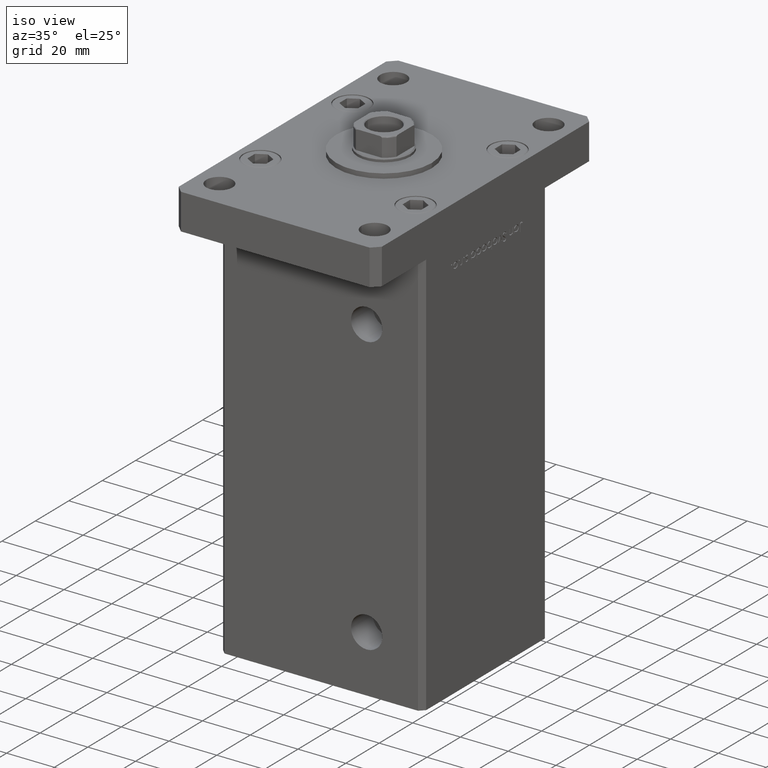
[diagram: clean part render]
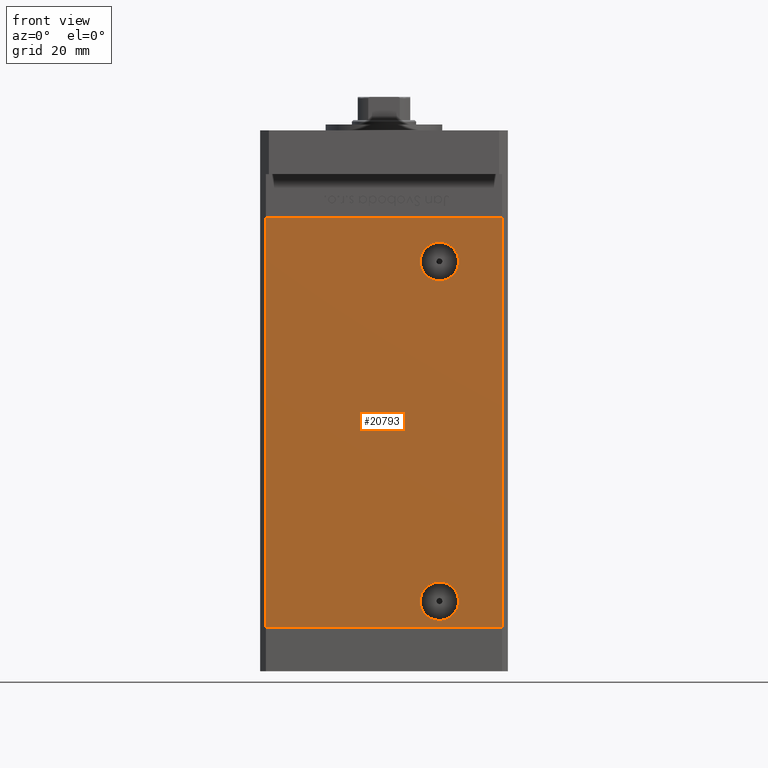
[diagram: tour spotlight — one face highlighted and labeled with its STEP entity id]
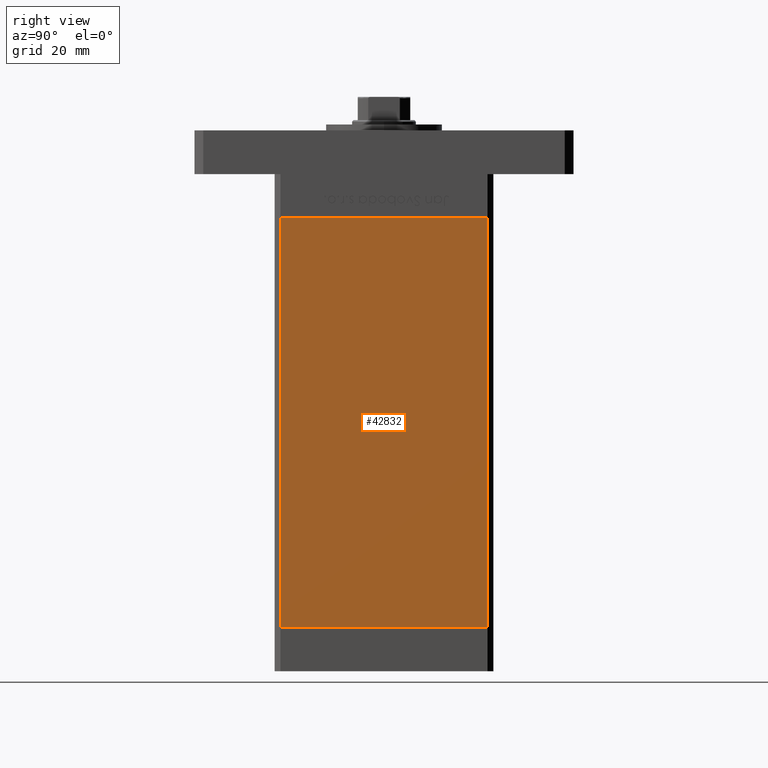
[diagram: tour spotlight — one face highlighted and labeled with its STEP entity id]
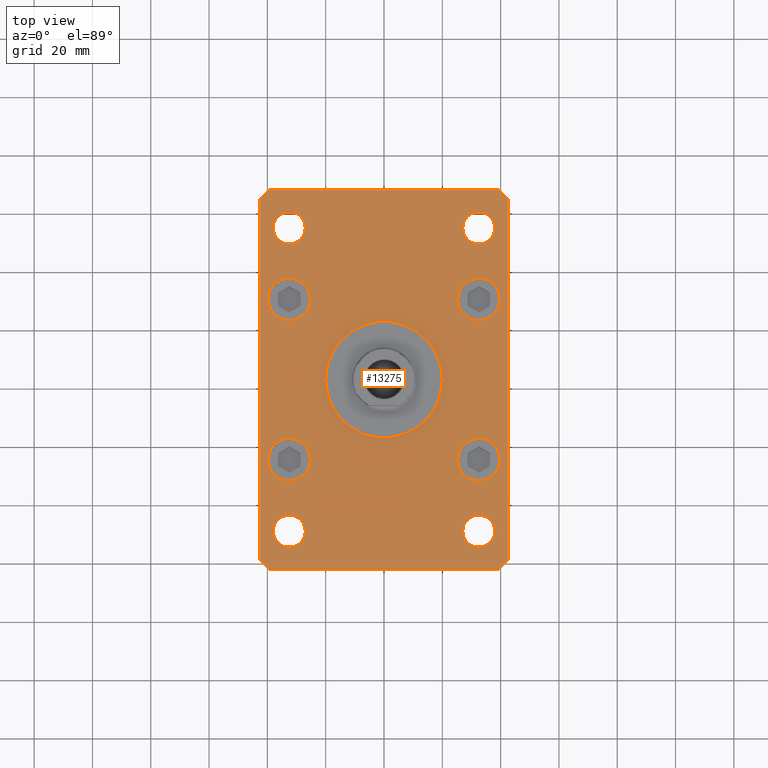
[diagram: tour spotlight — one face highlighted and labeled with its STEP entity id]
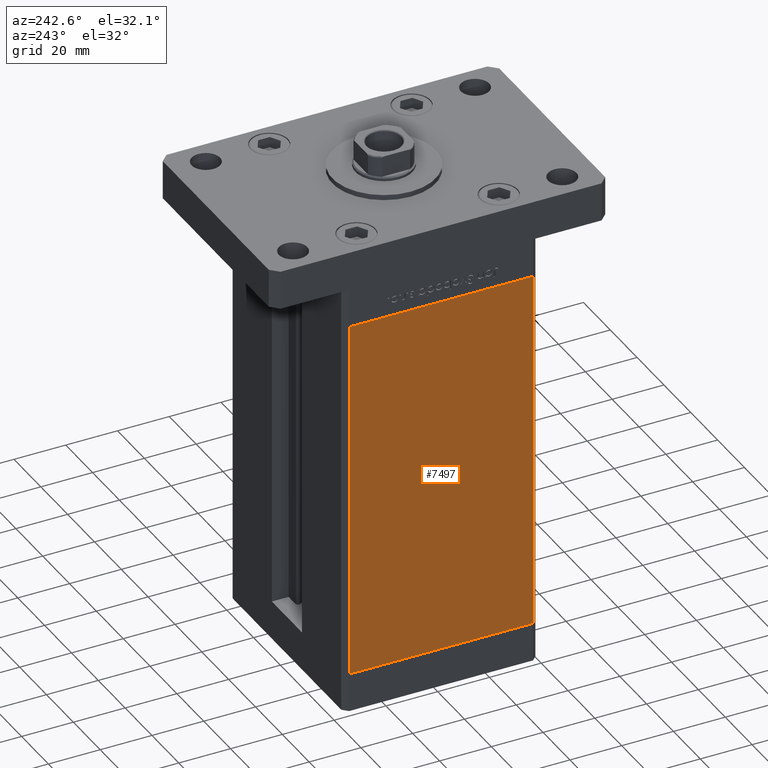
[diagram: tour spotlight — one face highlighted and labeled with its STEP entity id]
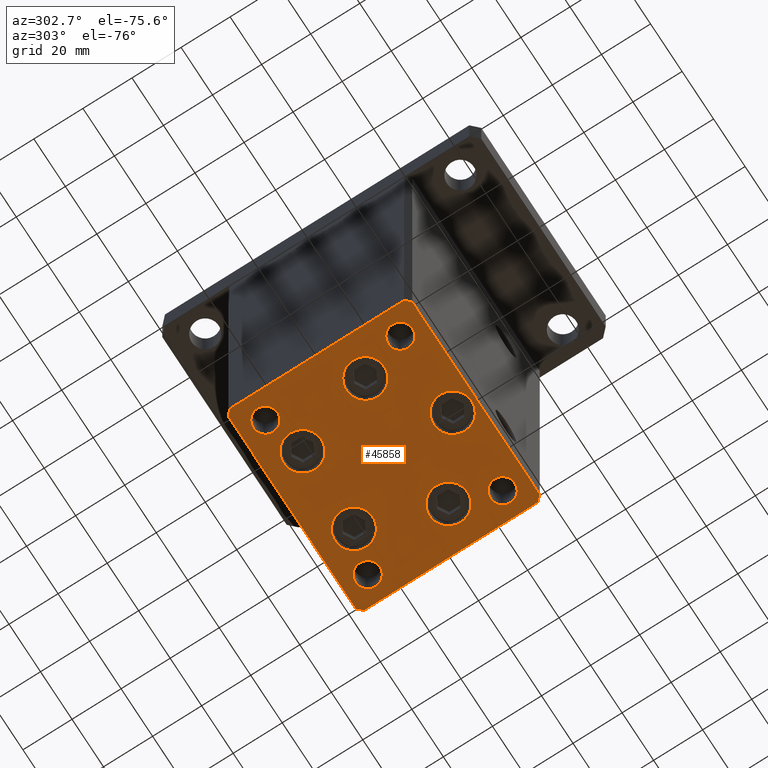
[diagram: tour spotlight — one face highlighted and labeled with its STEP entity id]
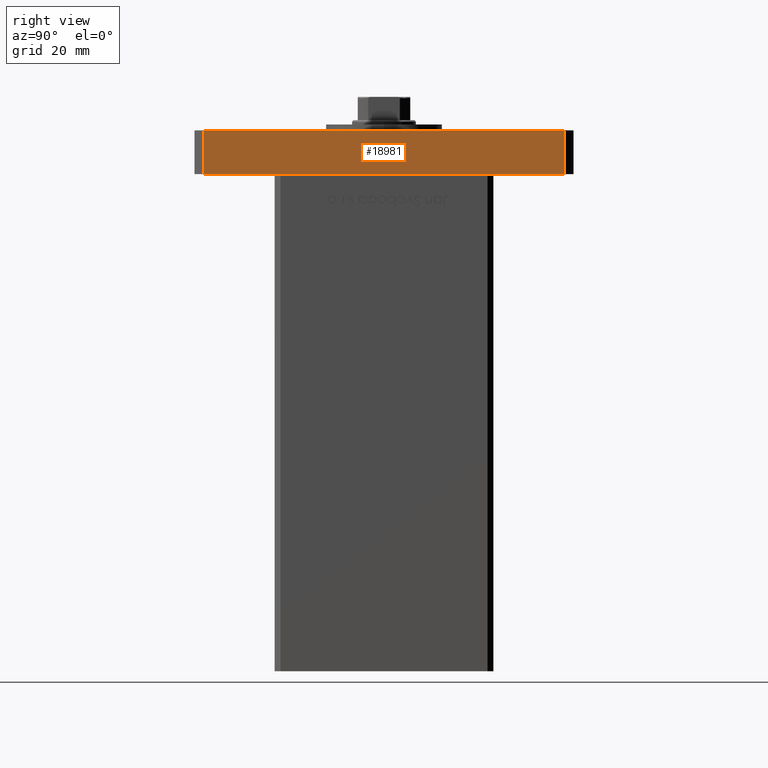
[diagram: tour spotlight — one face highlighted and labeled with its STEP entity id]
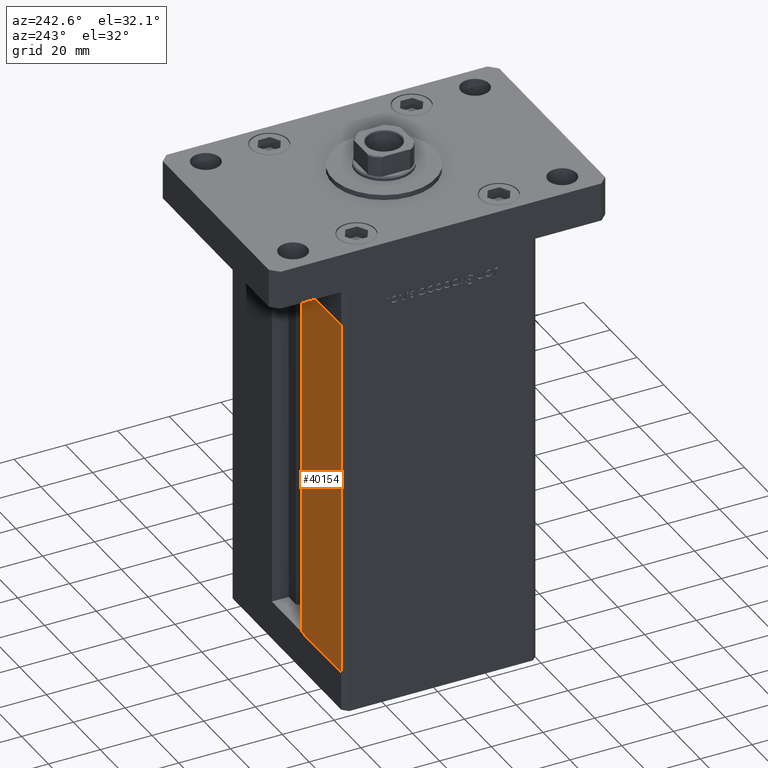
[diagram: tour spotlight — one face highlighted and labeled with its STEP entity id]
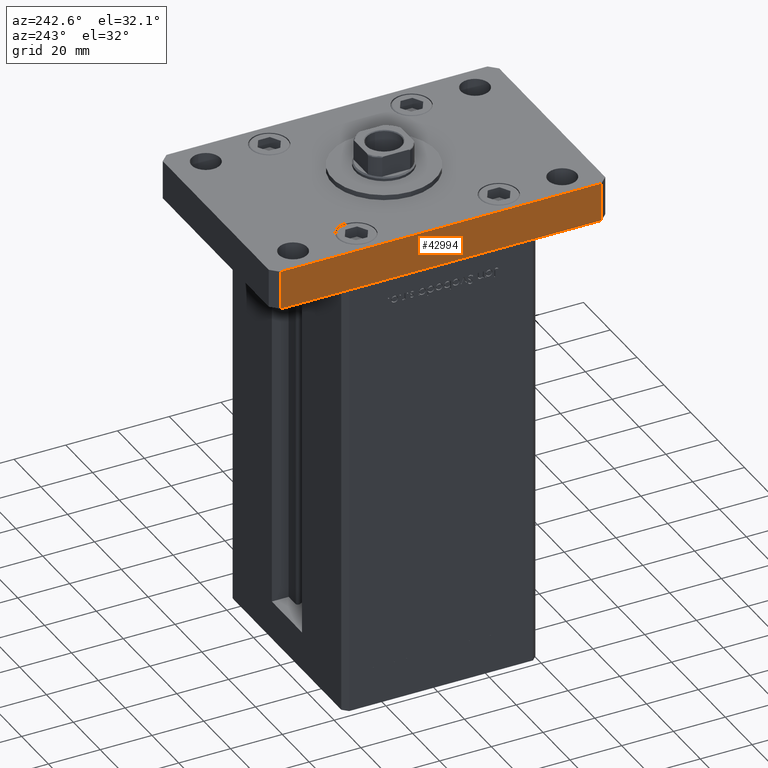
[diagram: tour spotlight — one face highlighted and labeled with its STEP entity id]
A machine part: a face-by-face anatomy tour. The part has 1310 B-rep faces; the first image is the clean iso view, then the 8 largest visible faces are spotlighted one at a time (largest first), each with its STEP entity span.

Face 1 — front view, entity #20793. In plain terms, the highlighted planar face has unit normal (0, 1, 0).
Definition (entity closure, byte-faithful):
#1348 = FACE_OUTER_BOUND ( 'NONE', #18379, .T. ) ;
#2220 = EDGE_LOOP ( 'NONE', ( #43420, #20106 ) ) ;
#2343 = DIRECTION ( 'NONE',  ( 1.000000000000000000, 0.000000000000000000, 0.000000000000000000 ) ) ;
#3128 = CARTESIAN_POINT ( 'NONE',  ( 18.99999999999998934, -37.50000000000000711, 9.000000000000007105 ) ) ;
#3312 = EDGE_CURVE ( 'NONE', #39003, #16203, #43526, .T. ) ;
#4315 = ORIENTED_EDGE ( 'NONE', *, *, #38762, .T. ) ;
#4907 = DIRECTION ( 'NONE',  ( -0.000000000000000000, -0.000000000000000000, -1.000000000000000000 ) ) ;
#5133 = FACE_BOUND ( 'NONE', #37265, .T. ) ;
#5435 = VECTOR ( 'NONE', #4907, 1000.000000000000000 ) ;
#5649 = DIRECTION ( 'NONE',  ( -0.000000000000000000, 1.000000000000000000, -0.000000000000000000 ) ) ;
#5675 = LINE ( 'NONE', #22192, #34978 ) ;
#5769 = CARTESIAN_POINT ( 'NONE',  ( 40.49999999999998579, -37.50000000000000711, 140.5000000000000000 ) ) ;
#6112 = LINE ( 'NONE', #7203, #19946 ) ;
#7203 = CARTESIAN_POINT ( 'NONE',  ( -40.49999999999998579, -37.50000000000000711, 0.000000000000000000 ) ) ;
#7796 = VERTEX_POINT ( 'NONE', #29809 ) ;
#8516 = ORIENTED_EDGE ( 'NONE', *, *, #46837, .T. ) ;
#9506 = VERTEX_POINT ( 'NONE', #15339 ) ;
#10965 = CIRCLE ( 'NONE', #22175, 6.579999999999988525 ) ;
#11456 = ORIENTED_EDGE ( 'NONE', *, *, #26611, .F. ) ;
#12261 = AXIS2_PLACEMENT_3D ( 'NONE', #13279, #13542, #25731 ) ;
#13279 = CARTESIAN_POINT ( 'NONE',  ( -40.49999999999998579, -37.50000000000000711, 140.5000000000000000 ) ) ;
#13542 = DIRECTION ( 'NONE',  ( 0.000000000000000000, 1.000000000000000000, 0.000000000000000000 ) ) ;
#13728 = DIRECTION ( 'NONE',  ( 0.000000000000000000, 0.000000000000000000, -1.000000000000000000 ) ) ;
#13745 = CARTESIAN_POINT ( 'NONE',  ( -40.49999999999998579, -37.50000000000000711, 140.5000000000000000 ) ) ;
#15339 = CARTESIAN_POINT ( 'NONE',  ( -40.49999999999998579, -37.50000000000000711, 140.5000000000000000 ) ) ;
#16203 = VERTEX_POINT ( 'NONE', #47954 ) ;
#16217 = DIRECTION ( 'NONE',  ( -0.000000000000000000, 1.000000000000000000, -0.000000000000000000 ) ) ;
#16405 = EDGE_CURVE ( 'NONE', #16203, #39003, #42448, .T. ) ;
#16845 = LINE ( 'NONE', #25508, #5435 ) ;
#17615 = EDGE_CURVE ( 'NONE', #49025, #17933, #6112, .T. ) ;
#17933 = VERTEX_POINT ( 'NONE', #39346 ) ;
#18373 = DIRECTION ( 'NONE',  ( 0.000000000000000000, 0.000000000000000000, -1.000000000000000000 ) ) ;
#18379 = EDGE_LOOP ( 'NONE', ( #49727, #52407, #11456, #8516 ) ) ;
#19388 = DIRECTION ( 'NONE',  ( 1.000000000000000000, 0.000000000000000000, 0.000000000000000000 ) ) ;
#19946 = VECTOR ( 'NONE', #19388, 1000.000000000000000 ) ;
#20106 = ORIENTED_EDGE ( 'NONE', *, *, #3312, .F. ) ;
#20793 = ADVANCED_FACE ( 'NONE', ( #21934, #1348, #5133 ), #46101, .F. ) ;
#20994 = EDGE_CURVE ( 'NONE', #7796, #34066, #34785, .T. ) ;
#21934 = FACE_BOUND ( 'NONE', #2220, .T. ) ;
#22175 = AXIS2_PLACEMENT_3D ( 'NONE', #38998, #5649, #18373 ) ;
#22192 = CARTESIAN_POINT ( 'NONE',  ( -40.49999999999998579, -37.50000000000000711, 140.5000000000000000 ) ) ;
#22412 = ORIENTED_EDGE ( 'NONE', *, *, #20994, .T. ) ;
#24742 = EDGE_CURVE ( 'NONE', #48357, #17933, #16845, .T. ) ;
#25508 = CARTESIAN_POINT ( 'NONE',  ( 40.49999999999998579, -37.50000000000000711, 140.5000000000000000 ) ) ;
#25566 = CARTESIAN_POINT ( 'NONE',  ( -40.49999999999998579, -37.50000000000000711, 0.000000000000000000 ) ) ;
#25731 = DIRECTION ( 'NONE',  ( 0.000000000000000000, -0.000000000000000000, 1.000000000000000000 ) ) ;
#26611 = EDGE_CURVE ( 'NONE', #9506, #48357, #5675, .T. ) ;
#29809 = CARTESIAN_POINT ( 'NONE',  ( 18.99999999999997513, -37.50000000000000711, 118.9200000000000159 ) ) ;
#30324 = AXIS2_PLACEMENT_3D ( 'NONE', #33813, #33290, #13728 ) ;
#30829 = LINE ( 'NONE', #13745, #53639 ) ;
#31314 = DIRECTION ( 'NONE',  ( 0.000000000000000000, 0.000000000000000000, -1.000000000000000000 ) ) ;
#32198 = AXIS2_PLACEMENT_3D ( 'NONE', #53389, #16217, #32764 ) ;
#32764 = DIRECTION ( 'NONE',  ( 0.000000000000000000, 0.000000000000000000, -1.000000000000000000 ) ) ;
#33290 = DIRECTION ( 'NONE',  ( 0.000000000000000000, -1.000000000000000000, 0.000000000000000000 ) ) ;
#33813 = CARTESIAN_POINT ( 'NONE',  ( 18.99999999999998934, -37.50000000000000711, 9.000000000000007105 ) ) ;
#34066 = VERTEX_POINT ( 'NONE', #41701 ) ;
#34785 = CIRCLE ( 'NONE', #32198, 6.579999999999988525 ) ;
#34978 = VECTOR ( 'NONE', #2343, 1000.000000000000000 ) ;
#36476 = DIRECTION ( 'NONE',  ( 0.000000000000000000, -1.000000000000000000, 0.000000000000000000 ) ) ;
#37074 = CARTESIAN_POINT ( 'NONE',  ( 18.99999999999998934, -37.50000000000000711, 15.58000000000000718 ) ) ;
#37265 = EDGE_LOOP ( 'NONE', ( #22412, #4315 ) ) ;
#38762 = EDGE_CURVE ( 'NONE', #34066, #7796, #10965, .T. ) ;
#38998 = CARTESIAN_POINT ( 'NONE',  ( 18.99999999999997513, -37.50000000000000711, 125.5000000000000000 ) ) ;
#39003 = VERTEX_POINT ( 'NONE', #37074 ) ;
#39346 = CARTESIAN_POINT ( 'NONE',  ( 40.49999999999998579, -37.50000000000000711, 0.000000000000000000 ) ) ;
#41701 = CARTESIAN_POINT ( 'NONE',  ( 18.99999999999997513, -37.50000000000000711, 132.0800000000000125 ) ) ;
#42448 = CIRCLE ( 'NONE', #30324, 6.579999999999998295 ) ;
#43420 = ORIENTED_EDGE ( 'NONE', *, *, #16405, .F. ) ;
#43526 = CIRCLE ( 'NONE', #50430, 6.579999999999998295 ) ;
#46101 = PLANE ( 'NONE',  #12261 ) ;
#46575 = DIRECTION ( 'NONE',  ( -0.000000000000000000, -0.000000000000000000, -1.000000000000000000 ) ) ;
#46837 = EDGE_CURVE ( 'NONE', #9506, #49025, #30829, .T. ) ;
#47954 = CARTESIAN_POINT ( 'NONE',  ( 18.99999999999998934, -37.50000000000000711, 2.420000000000009699 ) ) ;
#48357 = VERTEX_POINT ( 'NONE', #5769 ) ;
#49025 = VERTEX_POINT ( 'NONE', #25566 ) ;
#49727 = ORIENTED_EDGE ( 'NONE', *, *, #17615, .T. ) ;
#50430 = AXIS2_PLACEMENT_3D ( 'NONE', #3128, #36476, #31314 ) ;
#52407 = ORIENTED_EDGE ( 'NONE', *, *, #24742, .F. ) ;
#53389 = CARTESIAN_POINT ( 'NONE',  ( 18.99999999999997513, -37.50000000000000711, 125.5000000000000000 ) ) ;
#53639 = VECTOR ( 'NONE', #46575, 1000.000000000000000 ) ;

Face 2 — right view, entity #42832. In plain terms, the highlighted planar face has unit normal (1, -0, 0).
Definition (entity closure, byte-faithful):
#1988 = DIRECTION ( 'NONE',  ( 2.931927001650941360E-16, 1.000000000000000000, 0.000000000000000000 ) ) ;
#3176 = LINE ( 'NONE', #19688, #6549 ) ;
#4330 = CARTESIAN_POINT ( 'NONE',  ( 42.49999999999998579, -35.50000000000000711, 140.5000000000000000 ) ) ;
#4376 = CARTESIAN_POINT ( 'NONE',  ( 42.49999999999998579, -35.50000000000000711, 140.5000000000000000 ) ) ;
#4578 = ORIENTED_EDGE ( 'NONE', *, *, #21183, .F. ) ;
#5793 = VERTEX_POINT ( 'NONE', #4376 ) ;
#6549 = VECTOR ( 'NONE', #32181, 1000.000000000000000 ) ;
#6582 = DIRECTION ( 'NONE',  ( 1.000000000000000000, -2.931927001650941360E-16, 0.000000000000000000 ) ) ;
#6736 = AXIS2_PLACEMENT_3D ( 'NONE', #51872, #6582, #1988 ) ;
#8352 = CARTESIAN_POINT ( 'NONE',  ( 42.50000000000000711, 35.50000000000001421, 0.000000000000000000 ) ) ;
#13993 = VERTEX_POINT ( 'NONE', #31126 ) ;
#14979 = FACE_OUTER_BOUND ( 'NONE', #43632, .T. ) ;
#15254 = PLANE ( 'NONE',  #6736 ) ;
#19688 = CARTESIAN_POINT ( 'NONE',  ( 42.50000000000000711, 35.50000000000001421, 140.5000000000000000 ) ) ;
#20037 = EDGE_CURVE ( 'NONE', #5793, #44017, #20854, .T. ) ;
#20635 = ORIENTED_EDGE ( 'NONE', *, *, #34030, .T. ) ;
#20854 = LINE ( 'NONE', #4330, #33044 ) ;
#21183 = EDGE_CURVE ( 'NONE', #13993, #44017, #33032, .T. ) ;
#25541 = VECTOR ( 'NONE', #41431, 1000.000000000000000 ) ;
#25955 = CARTESIAN_POINT ( 'NONE',  ( 42.49999999999998579, -35.50000000000000711, 0.000000000000000000 ) ) ;
#30571 = ORIENTED_EDGE ( 'NONE', *, *, #20037, .T. ) ;
#31126 = CARTESIAN_POINT ( 'NONE',  ( 42.50000000000000711, 35.50000000000001421, 0.000000000000000000 ) ) ;
#32181 = DIRECTION ( 'NONE',  ( -0.000000000000000000, -0.000000000000000000, -1.000000000000000000 ) ) ;
#33032 = LINE ( 'NONE', #8352, #40019 ) ;
#33044 = VECTOR ( 'NONE', #46092, 1000.000000000000000 ) ;
#34030 = EDGE_CURVE ( 'NONE', #49720, #5793, #45239, .T. ) ;
#34090 = CARTESIAN_POINT ( 'NONE',  ( 42.50000000000000711, 35.50000000000001421, 140.5000000000000000 ) ) ;
#36092 = EDGE_CURVE ( 'NONE', #49720, #13993, #3176, .T. ) ;
#40019 = VECTOR ( 'NONE', #51970, 1000.000000000000000 ) ;
#41431 = DIRECTION ( 'NONE',  ( -2.931927001650941360E-16, -1.000000000000000000, 0.000000000000000000 ) ) ;
#42832 = ADVANCED_FACE ( 'NONE', ( #14979 ), #15254, .T. ) ;
#43632 = EDGE_LOOP ( 'NONE', ( #4578, #45174, #20635, #30571 ) ) ;
#44017 = VERTEX_POINT ( 'NONE', #25955 ) ;
#45174 = ORIENTED_EDGE ( 'NONE', *, *, #36092, .F. ) ;
#45239 = LINE ( 'NONE', #34090, #25541 ) ;
#46092 = DIRECTION ( 'NONE',  ( -0.000000000000000000, -0.000000000000000000, -1.000000000000000000 ) ) ;
#47560 = CARTESIAN_POINT ( 'NONE',  ( 42.50000000000000711, 35.50000000000001421, 140.5000000000000000 ) ) ;
#49720 = VERTEX_POINT ( 'NONE', #47560 ) ;
#51872 = CARTESIAN_POINT ( 'NONE',  ( 42.50000000000000711, 35.50000000000001421, 140.5000000000000000 ) ) ;
#51970 = DIRECTION ( 'NONE',  ( -2.931927001650941360E-16, -1.000000000000000000, 0.000000000000000000 ) ) ;

Face 3 — top view, entity #13275. In plain terms, the highlighted planar face has unit normal (0, 0, 1).
Definition (entity closure, byte-faithful):
#5 = FACE_BOUND ( 'NONE', #26369, .T. ) ;
#247 = DIRECTION ( 'NONE',  ( 0.000000000000000000, 0.000000000000000000, 1.000000000000000000 ) ) ;
#302 = EDGE_CURVE ( 'NONE', #7548, #49223, #12218, .T. ) ;
#408 = EDGE_LOOP ( 'NONE', ( #41291, #6828 ) ) ;
#759 = AXIS2_PLACEMENT_3D ( 'NONE', #25985, #44095, #15607 ) ;
#964 = ORIENTED_EDGE ( 'NONE', *, *, #30358, .F. ) ;
#1184 = DIRECTION ( 'NONE',  ( 1.000000000000000000, 1.405345600791337191E-15, 0.000000000000000000 ) ) ;
#1326 = VERTEX_POINT ( 'NONE', #9024 ) ;
#1625 = DIRECTION ( 'NONE',  ( 0.000000000000000000, 0.000000000000000000, 1.000000000000000000 ) ) ;
#1637 = CARTESIAN_POINT ( 'NONE',  ( 32.49999999999997868, -52.00000000000000711, 15.00000000000000000 ) ) ;
#1708 = CARTESIAN_POINT ( 'NONE',  ( -20.00000000000000000, 0.000000000000000000, 15.00000000000000000 ) ) ;
#1800 = CARTESIAN_POINT ( 'NONE',  ( -32.49999999999997868, -52.00000000000000711, 15.00000000000000000 ) ) ;
#1858 = CARTESIAN_POINT ( 'NONE',  ( 32.50000000000000000, 51.99999999999999289, 15.00000000000000000 ) ) ;
#1899 = AXIS2_PLACEMENT_3D ( 'NONE', #34377, #30294, #29494 ) ;
#1917 = VECTOR ( 'NONE', #53453, 1000.000000000000000 ) ;
#2207 = DIRECTION ( 'NONE',  ( 1.000000000000000000, 0.000000000000000000, 0.000000000000000000 ) ) ;
#2308 = EDGE_LOOP ( 'NONE', ( #35830, #33357 ) ) ;
#2605 = VECTOR ( 'NONE', #47120, 1000.000000000000000 ) ;
#3155 = ORIENTED_EDGE ( 'NONE', *, *, #21557, .T. ) ;
#3217 = ORIENTED_EDGE ( 'NONE', *, *, #18539, .F. ) ;
#3352 = VECTOR ( 'NONE', #39481, 1000.000000000000000 ) ;
#3401 = ORIENTED_EDGE ( 'NONE', *, *, #16714, .T. ) ;
#3452 = DIRECTION ( 'NONE',  ( 0.000000000000000000, 0.000000000000000000, 1.000000000000000000 ) ) ;
#3549 = CIRCLE ( 'NONE', #52960, 5.499999999999994671 ) ;
#3550 = FACE_BOUND ( 'NONE', #2308, .T. ) ;
#3872 = CARTESIAN_POINT ( 'NONE',  ( 42.50000000000000000, 62.00000000000000711, 15.00000000000000000 ) ) ;
#3959 = EDGE_LOOP ( 'NONE', ( #50813, #46376 ) ) ;
#4020 = ORIENTED_EDGE ( 'NONE', *, *, #46531, .F. ) ;
#4084 = CARTESIAN_POINT ( 'NONE',  ( -42.49999999999999289, -62.00000000000001421, 15.00000000000000000 ) ) ;
#4132 = EDGE_CURVE ( 'NONE', #8528, #12634, #15046, .T. ) ;
#4284 = EDGE_CURVE ( 'NONE', #22141, #10270, #15819, .T. ) ;
#4337 = AXIS2_PLACEMENT_3D ( 'NONE', #30178, #25824, #17965 ) ;
#4353 = VECTOR ( 'NONE', #38007, 1000.000000000000000 ) ;
#4355 = AXIS2_PLACEMENT_3D ( 'NONE', #19547, #27674, #36106 ) ;
#4450 = DIRECTION ( 'NONE',  ( 1.000000000000000000, 0.000000000000000000, 0.000000000000000000 ) ) ;
#5076 = CARTESIAN_POINT ( 'NONE',  ( 37.99999999999997868, -52.00000000000000711, 15.00000000000000000 ) ) ;
#5244 = LINE ( 'NONE', #22044, #28002 ) ;
#5472 = CARTESIAN_POINT ( 'NONE',  ( -42.50000000000002132, 62.00000000000000711, 15.00000000000000000 ) ) ;
#5482 = CIRCLE ( 'NONE', #49661, 7.249999999999999112 ) ;
#5495 = CARTESIAN_POINT ( 'NONE',  ( 32.50000000000000000, -27.50000000000000000, 15.00000000000000000 ) ) ;
#5657 = CARTESIAN_POINT ( 'NONE',  ( 42.50000000000000000, 62.00000000000000711, 15.00000000000000000 ) ) ;
#5664 = EDGE_CURVE ( 'NONE', #19080, #29790, #21025, .T. ) ;
#5712 = DIRECTION ( 'NONE',  ( 0.000000000000000000, 0.000000000000000000, 1.000000000000000000 ) ) ;
#6153 = DIRECTION ( 'NONE',  ( 1.000000000000000000, 0.000000000000000000, 0.000000000000000000 ) ) ;
#6376 = EDGE_CURVE ( 'NONE', #26981, #25656, #5244, .T. ) ;
#6395 = LINE ( 'NONE', #26194, #3352 ) ;
#6828 = ORIENTED_EDGE ( 'NONE', *, *, #9515, .F. ) ;
#6937 = EDGE_CURVE ( 'NONE', #22909, #51302, #5482, .T. ) ;
#7548 = VERTEX_POINT ( 'NONE', #13061 ) ;
#7621 = EDGE_CURVE ( 'NONE', #36232, #17180, #34220, .T. ) ;
#7807 = VERTEX_POINT ( 'NONE', #29534 ) ;
#8000 = CARTESIAN_POINT ( 'NONE',  ( -32.50000000000000711, 27.50000000000000000, 15.00000000000000000 ) ) ;
#8102 = ORIENTED_EDGE ( 'NONE', *, *, #47737, .T. ) ;
#8373 = CARTESIAN_POINT ( 'NONE',  ( -32.50000000000000000, -27.50000000000000000, 15.00000000000000000 ) ) ;
#8528 = VERTEX_POINT ( 'NONE', #38416 ) ;
#8630 = CIRCLE ( 'NONE', #13812, 5.499999999999994671 ) ;
#9024 = CARTESIAN_POINT ( 'NONE',  ( 37.99999999999999289, 51.99999999999999289, 15.00000000000000000 ) ) ;
#9264 = LINE ( 'NONE', #5472, #4353 ) ;
#9515 = EDGE_CURVE ( 'NONE', #10270, #22141, #35408, .T. ) ;
#9946 = ORIENTED_EDGE ( 'NONE', *, *, #6376, .T. ) ;
#10004 = DIRECTION ( 'NONE',  ( 0.000000000000000000, 0.000000000000000000, 1.000000000000000000 ) ) ;
#10096 = DIRECTION ( 'NONE',  ( 1.000000000000000000, 0.000000000000000000, 0.000000000000000000 ) ) ;
#10270 = VERTEX_POINT ( 'NONE', #52913 ) ;
#10847 = DIRECTION ( 'NONE',  ( 1.000000000000000000, 0.000000000000000000, 0.000000000000000000 ) ) ;
#10971 = EDGE_LOOP ( 'NONE', ( #964, #4020 ) ) ;
#11149 = FACE_BOUND ( 'NONE', #32008, .T. ) ;
#11184 = VERTEX_POINT ( 'NONE', #24855 ) ;
#11696 = FACE_BOUND ( 'NONE', #3959, .T. ) ;
#11719 = AXIS2_PLACEMENT_3D ( 'NONE', #30570, #13490, #6153 ) ;
#12065 = CARTESIAN_POINT ( 'NONE',  ( 39.50000000000002842, 65.00000000000002842, 15.00000000000000000 ) ) ;
#12169 = CIRCLE ( 'NONE', #4337, 7.249999999999999112 ) ;
#12194 = CARTESIAN_POINT ( 'NONE',  ( -27.00000000000000711, 52.00000000000000000, 15.00000000000000000 ) ) ;
#12218 = CIRCLE ( 'NONE', #44282, 20.00000000000000000 ) ;
#12296 = DIRECTION ( 'NONE',  ( 0.000000000000000000, 0.000000000000000000, 1.000000000000000000 ) ) ;
#12634 = VERTEX_POINT ( 'NONE', #42705 ) ;
#12729 = CARTESIAN_POINT ( 'NONE',  ( 32.50000000000000000, -27.50000000000000000, 15.00000000000000000 ) ) ;
#12990 = DIRECTION ( 'NONE',  ( 1.000000000000000000, 0.000000000000000000, 0.000000000000000000 ) ) ;
#13061 = CARTESIAN_POINT ( 'NONE',  ( 20.00000000000000000, 2.449293598294706513E-15, 15.00000000000000000 ) ) ;
#13090 = DIRECTION ( 'NONE',  ( 0.000000000000000000, 0.000000000000000000, 1.000000000000000000 ) ) ;
#13275 = ADVANCED_FACE ( 'NONE', ( #11696, #20334, #3550, #37167, #23880, #28477, #44515, #5, #32300, #11149 ), #20071, .T. ) ;
#13464 = ORIENTED_EDGE ( 'NONE', *, *, #47323, .F. ) ;
#13490 = DIRECTION ( 'NONE',  ( 0.000000000000000000, 0.000000000000000000, 1.000000000000000000 ) ) ;
#13779 = CIRCLE ( 'NONE', #29377, 5.499999999999991118 ) ;
#13812 = AXIS2_PLACEMENT_3D ( 'NONE', #47243, #13090, #10096 ) ;
#14231 = EDGE_CURVE ( 'NONE', #7807, #28320, #29511, .T. ) ;
#14443 = VERTEX_POINT ( 'NONE', #15578 ) ;
#14599 = EDGE_CURVE ( 'NONE', #15027, #26981, #51345, .T. ) ;
#14688 = CARTESIAN_POINT ( 'NONE',  ( 39.75000000000000000, 27.50000000000000000, 15.00000000000000000 ) ) ;
#14918 = CARTESIAN_POINT ( 'NONE',  ( -25.25000000000000000, -27.50000000000000000, 15.00000000000000000 ) ) ;
#14924 = CARTESIAN_POINT ( 'NONE',  ( -32.50000000000000000, 52.00000000000000000, 15.00000000000000000 ) ) ;
#15027 = VERTEX_POINT ( 'NONE', #47202 ) ;
#15046 = LINE ( 'NONE', #12065, #37453 ) ;
#15578 = CARTESIAN_POINT ( 'NONE',  ( 25.25000000000000000, 27.50000000000000000, 15.00000000000000000 ) ) ;
#15607 = DIRECTION ( 'NONE',  ( 1.000000000000000000, 0.000000000000000000, 0.000000000000000000 ) ) ;
#15819 = CIRCLE ( 'NONE', #22726, 7.249999999999999112 ) ;
#16714 = EDGE_CURVE ( 'NONE', #11184, #35688, #9264, .T. ) ;
#16775 = ORIENTED_EDGE ( 'NONE', *, *, #4132, .T. ) ;
#17180 = VERTEX_POINT ( 'NONE', #12194 ) ;
#17259 = VERTEX_POINT ( 'NONE', #5657 ) ;
#17295 = ORIENTED_EDGE ( 'NONE', *, *, #42316, .F. ) ;
#17629 = ORIENTED_EDGE ( 'NONE', *, *, #5664, .F. ) ;
#17965 = DIRECTION ( 'NONE',  ( 1.000000000000000000, 0.000000000000000000, 0.000000000000000000 ) ) ;
#18322 = DIRECTION ( 'NONE',  ( 0.000000000000000000, 0.000000000000000000, 1.000000000000000000 ) ) ;
#18386 = DIRECTION ( 'NONE',  ( 1.000000000000000000, 0.000000000000000000, 0.000000000000000000 ) ) ;
#18539 = EDGE_CURVE ( 'NONE', #29790, #19080, #3549, .T. ) ;
#19019 = EDGE_CURVE ( 'NONE', #17259, #8528, #41552, .T. ) ;
#19046 = ORIENTED_EDGE ( 'NONE', *, *, #14599, .T. ) ;
#19080 = VERTEX_POINT ( 'NONE', #28818 ) ;
#19451 = EDGE_LOOP ( 'NONE', ( #19046, #9946, #8102, #40952, #16775, #43868, #3401, #3155 ) ) ;
#19547 = CARTESIAN_POINT ( 'NONE',  ( 0.000000000000000000, 0.000000000000000000, 15.00000000000000000 ) ) ;
#19740 = AXIS2_PLACEMENT_3D ( 'NONE', #1637, #5712, #10847 ) ;
#19806 = LINE ( 'NONE', #4084, #1917 ) ;
#20071 = PLANE ( 'NONE',  #4355 ) ;
#20334 = FACE_BOUND ( 'NONE', #408, .T. ) ;
#20798 = ORIENTED_EDGE ( 'NONE', *, *, #27666, .F. ) ;
#21025 = CIRCLE ( 'NONE', #50506, 5.499999999999994671 ) ;
#21557 = EDGE_CURVE ( 'NONE', #35688, #15027, #19806, .T. ) ;
#22009 = DIRECTION ( 'NONE',  ( 1.000000000000000000, 0.000000000000000000, 0.000000000000000000 ) ) ;
#22044 = CARTESIAN_POINT ( 'NONE',  ( 39.50000000000001421, -64.99999999999988631, 15.00000000000000000 ) ) ;
#22059 = EDGE_LOOP ( 'NONE', ( #30009, #20798 ) ) ;
#22092 = VERTEX_POINT ( 'NONE', #28108 ) ;
#22141 = VERTEX_POINT ( 'NONE', #52533 ) ;
#22726 = AXIS2_PLACEMENT_3D ( 'NONE', #8000, #49492, #4450 ) ;
#22909 = VERTEX_POINT ( 'NONE', #31442 ) ;
#23127 = CARTESIAN_POINT ( 'NONE',  ( 39.50000000000001421, -64.99999999999988631, 15.00000000000000000 ) ) ;
#23211 = ORIENTED_EDGE ( 'NONE', *, *, #14231, .F. ) ;
#23407 = CIRCLE ( 'NONE', #25144, 7.249999999999999112 ) ;
#23723 = DIRECTION ( 'NONE',  ( -1.000000000000000000, -3.513364001978340512E-16, 0.000000000000000000 ) ) ;
#23880 = FACE_BOUND ( 'NONE', #50345, .T. ) ;
#24562 = CARTESIAN_POINT ( 'NONE',  ( -38.00000000000000000, 52.00000000000000000, 15.00000000000000000 ) ) ;
#24855 = CARTESIAN_POINT ( 'NONE',  ( -42.50000000000002132, 62.00000000000000711, 15.00000000000000000 ) ) ;
#24895 = DIRECTION ( 'NONE',  ( 1.000000000000000000, 0.000000000000000000, 0.000000000000000000 ) ) ;
#25144 = AXIS2_PLACEMENT_3D ( 'NONE', #5495, #41847, #22009 ) ;
#25196 = VECTOR ( 'NONE', #36967, 1000.000000000000000 ) ;
#25578 = DIRECTION ( 'NONE',  ( 0.7071067811865459074, 0.7071067811865491270, 0.000000000000000000 ) ) ;
#25655 = DIRECTION ( 'NONE',  ( 1.000000000000000000, 0.000000000000000000, 0.000000000000000000 ) ) ;
#25656 = VERTEX_POINT ( 'NONE', #31064 ) ;
#25824 = DIRECTION ( 'NONE',  ( 0.000000000000000000, 0.000000000000000000, 1.000000000000000000 ) ) ;
#25985 = CARTESIAN_POINT ( 'NONE',  ( -32.50000000000000711, 27.50000000000000000, 15.00000000000000000 ) ) ;
#26194 = CARTESIAN_POINT ( 'NONE',  ( -39.50000000000003553, 65.00000000000000000, 15.00000000000000000 ) ) ;
#26369 = EDGE_LOOP ( 'NONE', ( #23211, #30834 ) ) ;
#26900 = DIRECTION ( 'NONE',  ( 1.000000000000000000, 0.000000000000000000, 0.000000000000000000 ) ) ;
#26907 = AXIS2_PLACEMENT_3D ( 'NONE', #36543, #3452, #28127 ) ;
#26981 = VERTEX_POINT ( 'NONE', #23127 ) ;
#27666 = EDGE_CURVE ( 'NONE', #49304, #14443, #43686, .T. ) ;
#27674 = DIRECTION ( 'NONE',  ( 0.000000000000000000, 0.000000000000000000, 1.000000000000000000 ) ) ;
#27873 = VERTEX_POINT ( 'NONE', #50886 ) ;
#28002 = VECTOR ( 'NONE', #25578, 1000.000000000000114 ) ;
#28108 = CARTESIAN_POINT ( 'NONE',  ( 26.99999999999998579, -52.00000000000000711, 15.00000000000000000 ) ) ;
#28127 = DIRECTION ( 'NONE',  ( 1.000000000000000000, 0.000000000000000000, 0.000000000000000000 ) ) ;
#28320 = VERTEX_POINT ( 'NONE', #14918 ) ;
#28477 = FACE_OUTER_BOUND ( 'NONE', #19451, .T. ) ;
#28622 = CARTESIAN_POINT ( 'NONE',  ( -26.99999999999998579, -52.00000000000000711, 15.00000000000000000 ) ) ;
#28818 = CARTESIAN_POINT ( 'NONE',  ( -37.99999999999997868, -52.00000000000000711, 15.00000000000000000 ) ) ;
#28822 = EDGE_LOOP ( 'NONE', ( #53557, #13464 ) ) ;
#29120 = AXIS2_PLACEMENT_3D ( 'NONE', #8373, #247, #24895 ) ;
#29377 = AXIS2_PLACEMENT_3D ( 'NONE', #1858, #10004, #18386 ) ;
#29494 = DIRECTION ( 'NONE',  ( 1.000000000000000000, 0.000000000000000000, 0.000000000000000000 ) ) ;
#29511 = CIRCLE ( 'NONE', #26907, 7.249999999999999112 ) ;
#29534 = CARTESIAN_POINT ( 'NONE',  ( -39.75000000000000000, -27.50000000000000000, 15.00000000000000000 ) ) ;
#29560 = DIRECTION ( 'NONE',  ( 1.000000000000000000, 0.000000000000000000, 0.000000000000000000 ) ) ;
#29790 = VERTEX_POINT ( 'NONE', #28622 ) ;
#30009 = ORIENTED_EDGE ( 'NONE', *, *, #49198, .F. ) ;
#30178 = CARTESIAN_POINT ( 'NONE',  ( 32.50000000000000000, 27.50000000000000000, 15.00000000000000000 ) ) ;
#30294 = DIRECTION ( 'NONE',  ( 0.000000000000000000, 0.000000000000000000, 1.000000000000000000 ) ) ;
#30358 = EDGE_CURVE ( 'NONE', #27873, #1326, #34973, .T. ) ;
#30570 = CARTESIAN_POINT ( 'NONE',  ( 32.50000000000000000, 51.99999999999999289, 15.00000000000000000 ) ) ;
#30574 = CARTESIAN_POINT ( 'NONE',  ( 42.50000000000000000, -61.99999999999988631, 15.00000000000000000 ) ) ;
#30834 = ORIENTED_EDGE ( 'NONE', *, *, #38672, .F. ) ;
#30884 = CARTESIAN_POINT ( 'NONE',  ( 32.50000000000000000, 27.50000000000000000, 15.00000000000000000 ) ) ;
#30980 = DIRECTION ( 'NONE',  ( 0.000000000000000000, 0.000000000000000000, 1.000000000000000000 ) ) ;
#31064 = CARTESIAN_POINT ( 'NONE',  ( 42.50000000000000000, -61.99999999999988631, 15.00000000000000000 ) ) ;
#31442 = CARTESIAN_POINT ( 'NONE',  ( 25.25000000000000000, -27.50000000000000000, 15.00000000000000000 ) ) ;
#31694 = DIRECTION ( 'NONE',  ( 1.000000000000000000, 0.000000000000000000, 0.000000000000000000 ) ) ;
#32008 = EDGE_LOOP ( 'NONE', ( #17295, #44474 ) ) ;
#32300 = FACE_BOUND ( 'NONE', #22059, .T. ) ;
#33357 = ORIENTED_EDGE ( 'NONE', *, *, #49916, .F. ) ;
#33605 = CIRCLE ( 'NONE', #19740, 5.499999999999998224 ) ;
#34220 = CIRCLE ( 'NONE', #36836, 5.499999999999994671 ) ;
#34377 = CARTESIAN_POINT ( 'NONE',  ( 32.49999999999997868, -52.00000000000000711, 15.00000000000000000 ) ) ;
#34973 = CIRCLE ( 'NONE', #11719, 5.499999999999991118 ) ;
#35408 = CIRCLE ( 'NONE', #759, 7.249999999999999112 ) ;
#35688 = VERTEX_POINT ( 'NONE', #44252 ) ;
#35830 = ORIENTED_EDGE ( 'NONE', *, *, #6937, .F. ) ;
#36059 = CIRCLE ( 'NONE', #29120, 7.249999999999999112 ) ;
#36106 = DIRECTION ( 'NONE',  ( 1.000000000000000000, 0.000000000000000000, -0.000000000000000000 ) ) ;
#36232 = VERTEX_POINT ( 'NONE', #24562 ) ;
#36543 = CARTESIAN_POINT ( 'NONE',  ( -32.50000000000000000, -27.50000000000000000, 15.00000000000000000 ) ) ;
#36721 = DIRECTION ( 'NONE',  ( 1.000000000000000000, 0.000000000000000000, 0.000000000000000000 ) ) ;
#36836 = AXIS2_PLACEMENT_3D ( 'NONE', #14924, #48295, #2207 ) ;
#36967 = DIRECTION ( 'NONE',  ( -0.7071067811865417996, 0.7071067811865532349, 0.000000000000000000 ) ) ;
#37167 = FACE_BOUND ( 'NONE', #28822, .T. ) ;
#37453 = VECTOR ( 'NONE', #23723, 1000.000000000000000 ) ;
#38007 = DIRECTION ( 'NONE',  ( 2.238352872228137677E-16, -1.000000000000000000, 0.000000000000000000 ) ) ;
#38051 = CARTESIAN_POINT ( 'NONE',  ( -39.50000000000000000, -65.00000000000000000, 15.00000000000000000 ) ) ;
#38416 = CARTESIAN_POINT ( 'NONE',  ( 39.50000000000002842, 65.00000000000002842, 15.00000000000000000 ) ) ;
#38672 = EDGE_CURVE ( 'NONE', #28320, #7807, #36059, .T. ) ;
#38785 = CARTESIAN_POINT ( 'NONE',  ( 0.000000000000000000, 0.000000000000000000, 15.00000000000000000 ) ) ;
#39354 = AXIS2_PLACEMENT_3D ( 'NONE', #30884, #47684, #31694 ) ;
#39481 = DIRECTION ( 'NONE',  ( -0.7071067811865466846, -0.7071067811865483499, 0.000000000000000000 ) ) ;
#40952 = ORIENTED_EDGE ( 'NONE', *, *, #19019, .T. ) ;
#41291 = ORIENTED_EDGE ( 'NONE', *, *, #4284, .F. ) ;
#41552 = LINE ( 'NONE', #3872, #25196 ) ;
#41847 = DIRECTION ( 'NONE',  ( 0.000000000000000000, 0.000000000000000000, 1.000000000000000000 ) ) ;
#42316 = EDGE_CURVE ( 'NONE', #22092, #53052, #33605, .T. ) ;
#42705 = CARTESIAN_POINT ( 'NONE',  ( -39.50000000000003553, 65.00000000000000000, 15.00000000000000000 ) ) ;
#42792 = LINE ( 'NONE', #30574, #2605 ) ;
#43631 = EDGE_CURVE ( 'NONE', #12634, #11184, #6395, .T. ) ;
#43686 = CIRCLE ( 'NONE', #39354, 7.249999999999999112 ) ;
#43868 = ORIENTED_EDGE ( 'NONE', *, *, #43631, .T. ) ;
#44095 = DIRECTION ( 'NONE',  ( 0.000000000000000000, 0.000000000000000000, 1.000000000000000000 ) ) ;
#44252 = CARTESIAN_POINT ( 'NONE',  ( -42.49999999999999289, -62.00000000000001421, 15.00000000000000000 ) ) ;
#44282 = AXIS2_PLACEMENT_3D ( 'NONE', #52722, #12296, #36721 ) ;
#44474 = ORIENTED_EDGE ( 'NONE', *, *, #53662, .F. ) ;
#44515 = FACE_BOUND ( 'NONE', #10971, .T. ) ;
#45159 = CIRCLE ( 'NONE', #50336, 20.00000000000000000 ) ;
#46376 = ORIENTED_EDGE ( 'NONE', *, *, #302, .F. ) ;
#46531 = EDGE_CURVE ( 'NONE', #1326, #27873, #13779, .T. ) ;
#47120 = DIRECTION ( 'NONE',  ( 0.000000000000000000, 1.000000000000000000, 0.000000000000000000 ) ) ;
#47202 = CARTESIAN_POINT ( 'NONE',  ( -39.50000000000000000, -65.00000000000000000, 15.00000000000000000 ) ) ;
#47243 = CARTESIAN_POINT ( 'NONE',  ( -32.50000000000000000, 52.00000000000000000, 15.00000000000000000 ) ) ;
#47323 = EDGE_CURVE ( 'NONE', #17180, #36232, #8630, .T. ) ;
#47684 = DIRECTION ( 'NONE',  ( 0.000000000000000000, 0.000000000000000000, 1.000000000000000000 ) ) ;
#47737 = EDGE_CURVE ( 'NONE', #25656, #17259, #42792, .T. ) ;
#47804 = CIRCLE ( 'NONE', #1899, 5.499999999999998224 ) ;
#48295 = DIRECTION ( 'NONE',  ( 0.000000000000000000, 0.000000000000000000, 1.000000000000000000 ) ) ;
#49198 = EDGE_CURVE ( 'NONE', #14443, #49304, #12169, .T. ) ;
#49223 = VERTEX_POINT ( 'NONE', #1708 ) ;
#49304 = VERTEX_POINT ( 'NONE', #14688 ) ;
#49492 = DIRECTION ( 'NONE',  ( 0.000000000000000000, 0.000000000000000000, 1.000000000000000000 ) ) ;
#49604 = CARTESIAN_POINT ( 'NONE',  ( 39.75000000000000000, -27.50000000000000000, 15.00000000000000000 ) ) ;
#49661 = AXIS2_PLACEMENT_3D ( 'NONE', #12729, #50691, #12990 ) ;
#49916 = EDGE_CURVE ( 'NONE', #51302, #22909, #23407, .T. ) ;
#50336 = AXIS2_PLACEMENT_3D ( 'NONE', #38785, #1625, #29560 ) ;
#50345 = EDGE_LOOP ( 'NONE', ( #17629, #3217 ) ) ;
#50506 = AXIS2_PLACEMENT_3D ( 'NONE', #51606, #30980, #26900 ) ;
#50691 = DIRECTION ( 'NONE',  ( 0.000000000000000000, 0.000000000000000000, 1.000000000000000000 ) ) ;
#50813 = ORIENTED_EDGE ( 'NONE', *, *, #51184, .F. ) ;
#50886 = CARTESIAN_POINT ( 'NONE',  ( 27.00000000000001421, 51.99999999999999289, 15.00000000000000000 ) ) ;
#51184 = EDGE_CURVE ( 'NONE', #49223, #7548, #45159, .T. ) ;
#51302 = VERTEX_POINT ( 'NONE', #49604 ) ;
#51345 = LINE ( 'NONE', #38051, #53683 ) ;
#51606 = CARTESIAN_POINT ( 'NONE',  ( -32.49999999999997868, -52.00000000000000711, 15.00000000000000000 ) ) ;
#52533 = CARTESIAN_POINT ( 'NONE',  ( -39.75000000000000711, 27.50000000000000000, 15.00000000000000000 ) ) ;
#52722 = CARTESIAN_POINT ( 'NONE',  ( 0.000000000000000000, 0.000000000000000000, 15.00000000000000000 ) ) ;
#52913 = CARTESIAN_POINT ( 'NONE',  ( -25.25000000000000711, 27.50000000000000000, 15.00000000000000000 ) ) ;
#52960 = AXIS2_PLACEMENT_3D ( 'NONE', #1800, #18322, #25655 ) ;
#53052 = VERTEX_POINT ( 'NONE', #5076 ) ;
#53453 = DIRECTION ( 'NONE',  ( 0.7071067811865483499, -0.7071067811865466846, 0.000000000000000000 ) ) ;
#53557 = ORIENTED_EDGE ( 'NONE', *, *, #7621, .F. ) ;
#53662 = EDGE_CURVE ( 'NONE', #53052, #22092, #47804, .T. ) ;
#53683 = VECTOR ( 'NONE', #1184, 1000.000000000000000 ) ;

Face 4 — auxiliary view, entity #7497. In plain terms, the highlighted planar face has unit normal (1, 0, 0).
Definition (entity closure, byte-faithful):
#678 = CARTESIAN_POINT ( 'NONE',  ( -42.49999999999998579, -35.50000000000000711, 140.5000000000000000 ) ) ;
#1661 = CARTESIAN_POINT ( 'NONE',  ( -42.50000000000000711, 35.50000000000001421, 140.5000000000000000 ) ) ;
#2563 = VECTOR ( 'NONE', #7440, 1000.000000000000000 ) ;
#6182 = DIRECTION ( 'NONE',  ( 2.931927001650941360E-16, -1.000000000000000000, 0.000000000000000000 ) ) ;
#7440 = DIRECTION ( 'NONE',  ( -0.000000000000000000, -0.000000000000000000, -1.000000000000000000 ) ) ;
#7497 = ADVANCED_FACE ( 'NONE', ( #46156 ), #29868, .F. ) ;
#8997 = DIRECTION ( 'NONE',  ( 1.000000000000000000, 2.931927001650941360E-16, -0.000000000000000000 ) ) ;
#10047 = LINE ( 'NONE', #46658, #41665 ) ;
#13252 = CARTESIAN_POINT ( 'NONE',  ( -42.50000000000000711, 35.50000000000001421, 140.5000000000000000 ) ) ;
#13975 = VERTEX_POINT ( 'NONE', #22718 ) ;
#14307 = ORIENTED_EDGE ( 'NONE', *, *, #34383, .F. ) ;
#14528 = CARTESIAN_POINT ( 'NONE',  ( -42.50000000000000711, 35.50000000000001421, 0.000000000000000000 ) ) ;
#15399 = CARTESIAN_POINT ( 'NONE',  ( -42.49999999999998579, -35.50000000000000711, 0.000000000000000000 ) ) ;
#17195 = DIRECTION ( 'NONE',  ( -0.000000000000000000, -0.000000000000000000, -1.000000000000000000 ) ) ;
#17298 = EDGE_CURVE ( 'NONE', #13975, #19179, #22177, .T. ) ;
#18158 = DIRECTION ( 'NONE',  ( 2.931927001650941360E-16, -1.000000000000000000, 0.000000000000000000 ) ) ;
#19179 = VERTEX_POINT ( 'NONE', #39363 ) ;
#21269 = LINE ( 'NONE', #678, #43763 ) ;
#21283 = VERTEX_POINT ( 'NONE', #14528 ) ;
#22177 = LINE ( 'NONE', #13252, #44240 ) ;
#22718 = CARTESIAN_POINT ( 'NONE',  ( -42.50000000000000711, 35.50000000000001421, 140.5000000000000000 ) ) ;
#29868 = PLANE ( 'NONE',  #44613 ) ;
#31297 = LINE ( 'NONE', #44598, #2563 ) ;
#33549 = ORIENTED_EDGE ( 'NONE', *, *, #51976, .T. ) ;
#33669 = DIRECTION ( 'NONE',  ( -2.931927001650941360E-16, 1.000000000000000000, 0.000000000000000000 ) ) ;
#34383 = EDGE_CURVE ( 'NONE', #19179, #41047, #21269, .T. ) ;
#34513 = ORIENTED_EDGE ( 'NONE', *, *, #47204, .T. ) ;
#39363 = CARTESIAN_POINT ( 'NONE',  ( -42.49999999999998579, -35.50000000000000711, 140.5000000000000000 ) ) ;
#41047 = VERTEX_POINT ( 'NONE', #15399 ) ;
#41665 = VECTOR ( 'NONE', #18158, 1000.000000000000000 ) ;
#42223 = ORIENTED_EDGE ( 'NONE', *, *, #17298, .F. ) ;
#43763 = VECTOR ( 'NONE', #17195, 1000.000000000000000 ) ;
#44240 = VECTOR ( 'NONE', #6182, 1000.000000000000000 ) ;
#44598 = CARTESIAN_POINT ( 'NONE',  ( -42.50000000000000711, 35.50000000000001421, 140.5000000000000000 ) ) ;
#44613 = AXIS2_PLACEMENT_3D ( 'NONE', #1661, #8997, #33669 ) ;
#45400 = EDGE_LOOP ( 'NONE', ( #33549, #14307, #42223, #34513 ) ) ;
#46156 = FACE_OUTER_BOUND ( 'NONE', #45400, .T. ) ;
#46658 = CARTESIAN_POINT ( 'NONE',  ( -42.50000000000000711, 35.50000000000001421, 0.000000000000000000 ) ) ;
#47204 = EDGE_CURVE ( 'NONE', #13975, #21283, #31297, .T. ) ;
#51976 = EDGE_CURVE ( 'NONE', #21283, #41047, #10047, .T. ) ;

Face 5 — auxiliary view, entity #45858. In plain terms, the highlighted planar face has unit normal (0, 0, -1).
Definition (entity closure, byte-faithful):
#446 = AXIS2_PLACEMENT_3D ( 'NONE', #22807, #35842, #43165 ) ;
#461 = CARTESIAN_POINT ( 'NONE',  ( -32.50000000000000000, -27.49999999999999645, 0.000000000000000000 ) ) ;
#1024 = CARTESIAN_POINT ( 'NONE',  ( 7.750000000000003553, -28.00000000000000000, 0.000000000000000000 ) ) ;
#1174 = EDGE_CURVE ( 'NONE', #26918, #22405, #22881, .T. ) ;
#1204 = ORIENTED_EDGE ( 'NONE', *, *, #26359, .F. ) ;
#1791 = AXIS2_PLACEMENT_3D ( 'NONE', #12232, #11966, #15760 ) ;
#1819 = ORIENTED_EDGE ( 'NONE', *, *, #27974, .T. ) ;
#2019 = DIRECTION ( 'NONE',  ( 1.000000000000000000, 0.000000000000000000, 0.000000000000000000 ) ) ;
#2078 = EDGE_LOOP ( 'NONE', ( #1819, #44219, #30594, #40046, #9652, #22720, #23330, #10699 ) ) ;
#2727 = LINE ( 'NONE', #35809, #10337 ) ;
#2867 = EDGE_CURVE ( 'NONE', #22405, #13787, #14828, .T. ) ;
#2976 = DIRECTION ( 'NONE',  ( 0.000000000000000000, -0.000000000000000000, -1.000000000000000000 ) ) ;
#3196 = FACE_BOUND ( 'NONE', #14524, .T. ) ;
#3220 = EDGE_CURVE ( 'NONE', #5080, #24641, #19642, .T. ) ;
#3279 = CARTESIAN_POINT ( 'NONE',  ( 32.50000000000000000, 27.49999999999999645, 0.000000000000000000 ) ) ;
#3344 = CARTESIAN_POINT ( 'NONE',  ( -34.14865316429776954, -9.333333333333337478, 0.000000000000000000 ) ) ;
#3462 = CIRCLE ( 'NONE', #47609, 7.750000000000003553 ) ;
#3852 = CARTESIAN_POINT ( 'NONE',  ( 26.39865316429776954, -9.333333333333330373, 0.000000000000000000 ) ) ;
#4298 = CIRCLE ( 'NONE', #34620, 4.999999999999997335 ) ;
#4698 = DIRECTION ( 'NONE',  ( 1.000000000000000000, 0.000000000000000000, 0.000000000000000000 ) ) ;
#4809 = CIRCLE ( 'NONE', #46390, 5.000000000000000888 ) ;
#4930 = VERTEX_POINT ( 'NONE', #25980 ) ;
#5080 = VERTEX_POINT ( 'NONE', #11821 ) ;
#5084 = CARTESIAN_POINT ( 'NONE',  ( 16.32291334290542295, 22.75000000000000000, 0.000000000000000000 ) ) ;
#5086 = AXIS2_PLACEMENT_3D ( 'NONE', #6788, #13853, #51813 ) ;
#5221 = CIRCLE ( 'NONE', #46770, 7.750000000000000000 ) ;
#5262 = CIRCLE ( 'NONE', #1791, 7.750000000000003553 ) ;
#5542 = CARTESIAN_POINT ( 'NONE',  ( 3.429011037612589276E-15, -28.00000000000000000, 0.000000000000000000 ) ) ;
#5785 = CARTESIAN_POINT ( 'NONE',  ( -27.50000000000000000, -27.49999999999999645, 0.000000000000000000 ) ) ;
#5913 = ORIENTED_EDGE ( 'NONE', *, *, #35269, .F. ) ;
#6052 = EDGE_CURVE ( 'NONE', #19744, #5080, #33534, .T. ) ;
#6075 = AXIS2_PLACEMENT_3D ( 'NONE', #43319, #47384, #51997 ) ;
#6261 = VERTEX_POINT ( 'NONE', #6644 ) ;
#6440 = DIRECTION ( 'NONE',  ( -0.7071067811865463515, -0.7071067811865487940, 0.000000000000000000 ) ) ;
#6644 = CARTESIAN_POINT ( 'NONE',  ( 34.14865316429776954, -9.333333333333328596, 0.000000000000000000 ) ) ;
#6788 = CARTESIAN_POINT ( 'NONE',  ( -26.39865316429776954, -9.333333333333337478, 0.000000000000000000 ) ) ;
#6879 = CARTESIAN_POINT ( 'NONE',  ( -24.07291334290543006, 22.74999999999999645, 0.000000000000000000 ) ) ;
#6932 = AXIS2_PLACEMENT_3D ( 'NONE', #32916, #8496, #4698 ) ;
#7001 = CARTESIAN_POINT ( 'NONE',  ( -42.50000000000000711, 35.49999999999997158, 0.000000000000000000 ) ) ;
#7022 = CARTESIAN_POINT ( 'NONE',  ( 42.50000000000000711, -35.50000000000000000, 0.000000000000000000 ) ) ;
#7241 = CARTESIAN_POINT ( 'NONE',  ( -32.50000000000000000, -27.49999999999999645, 0.000000000000000000 ) ) ;
#7543 = ORIENTED_EDGE ( 'NONE', *, *, #48020, .T. ) ;
#7678 = EDGE_LOOP ( 'NONE', ( #19865, #24102 ) ) ;
#7713 = CARTESIAN_POINT ( 'NONE',  ( 3.429011037612589276E-15, -28.00000000000000000, 0.000000000000000000 ) ) ;
#7719 = DIRECTION ( 'NONE',  ( 0.7071067811865474617, 0.7071067811865474617, 0.000000000000000000 ) ) ;
#8015 = VERTEX_POINT ( 'NONE', #45241 ) ;
#8046 = CARTESIAN_POINT ( 'NONE',  ( 32.50000000000000000, -27.49999999999999645, 0.000000000000000000 ) ) ;
#8181 = CIRCLE ( 'NONE', #34157, 7.750000000000000000 ) ;
#8365 = AXIS2_PLACEMENT_3D ( 'NONE', #461, #37083, #16722 ) ;
#8496 = DIRECTION ( 'NONE',  ( -0.000000000000000000, 0.000000000000000000, 1.000000000000000000 ) ) ;
#9172 = EDGE_CURVE ( 'NONE', #16489, #40734, #12913, .T. ) ;
#9309 = DIRECTION ( 'NONE',  ( 0.000000000000000000, -0.000000000000000000, -1.000000000000000000 ) ) ;
#9311 = CARTESIAN_POINT ( 'NONE',  ( 42.50000000000000711, -35.50000000000000000, 0.000000000000000000 ) ) ;
#9575 = ORIENTED_EDGE ( 'NONE', *, *, #22137, .T. ) ;
#9652 = ORIENTED_EDGE ( 'NONE', *, *, #46289, .T. ) ;
#9682 = EDGE_CURVE ( 'NONE', #22198, #47042, #32816, .T. ) ;
#9895 = VECTOR ( 'NONE', #47879, 1000.000000000000000 ) ;
#10337 = VECTOR ( 'NONE', #26309, 1000.000000000000114 ) ;
#10635 = VERTEX_POINT ( 'NONE', #38707 ) ;
#10699 = ORIENTED_EDGE ( 'NONE', *, *, #33983, .T. ) ;
#10708 = CARTESIAN_POINT ( 'NONE',  ( 40.50000000000000000, -37.50000000000000711, 0.000000000000000000 ) ) ;
#10781 = FACE_BOUND ( 'NONE', #44954, .T. ) ;
#11006 = AXIS2_PLACEMENT_3D ( 'NONE', #27852, #52826, #27314 ) ;
#11346 = VERTEX_POINT ( 'NONE', #21851 ) ;
#11605 = FACE_BOUND ( 'NONE', #25641, .T. ) ;
#11821 = CARTESIAN_POINT ( 'NONE',  ( 40.50000000000000000, -37.50000000000000711, 0.000000000000000000 ) ) ;
#11966 = DIRECTION ( 'NONE',  ( 0.000000000000000000, -0.000000000000000000, -1.000000000000000000 ) ) ;
#12232 = CARTESIAN_POINT ( 'NONE',  ( 16.32291334290542295, 22.75000000000000000, 0.000000000000000000 ) ) ;
#12913 = CIRCLE ( 'NONE', #5086, 7.750000000000000000 ) ;
#13163 = CARTESIAN_POINT ( 'NONE',  ( -40.50000000000000711, 37.49999999999997868, 0.000000000000000000 ) ) ;
#13561 = VERTEX_POINT ( 'NONE', #37899 ) ;
#13787 = VERTEX_POINT ( 'NONE', #34564 ) ;
#13853 = DIRECTION ( 'NONE',  ( 0.000000000000000000, -0.000000000000000000, -1.000000000000000000 ) ) ;
#13981 = CARTESIAN_POINT ( 'NONE',  ( -42.50000000000000000, -35.50000000000000711, 0.000000000000000000 ) ) ;
#14524 = EDGE_LOOP ( 'NONE', ( #46604, #25360 ) ) ;
#14584 = EDGE_CURVE ( 'NONE', #26280, #27586, #46832, .T. ) ;
#14828 = LINE ( 'NONE', #15645, #46935 ) ;
#15645 = CARTESIAN_POINT ( 'NONE',  ( -40.50000000000000711, 37.49999999999997868, 0.000000000000000000 ) ) ;
#15760 = DIRECTION ( 'NONE',  ( 1.000000000000000000, 0.000000000000000000, 0.000000000000000000 ) ) ;
#15848 = DIRECTION ( 'NONE',  ( 1.000000000000000000, 0.000000000000000000, 0.000000000000000000 ) ) ;
#16367 = EDGE_CURVE ( 'NONE', #11346, #52600, #21632, .T. ) ;
#16487 = AXIS2_PLACEMENT_3D ( 'NONE', #20747, #2976, #19495 ) ;
#16489 = VERTEX_POINT ( 'NONE', #3344 ) ;
#16722 = DIRECTION ( 'NONE',  ( 1.000000000000000000, 0.000000000000000000, 0.000000000000000000 ) ) ;
#17253 = DIRECTION ( 'NONE',  ( 1.000000000000000000, 0.000000000000000000, 0.000000000000000000 ) ) ;
#17706 = DIRECTION ( 'NONE',  ( 1.000000000000000000, 0.000000000000000000, 0.000000000000000000 ) ) ;
#17785 = ORIENTED_EDGE ( 'NONE', *, *, #48976, .T. ) ;
#18177 = CARTESIAN_POINT ( 'NONE',  ( -18.64865316429776954, -9.333333333333335702, 0.000000000000000000 ) ) ;
#18809 = DIRECTION ( 'NONE',  ( -1.000000000000000000, -3.426614273534436165E-16, 0.000000000000000000 ) ) ;
#19110 = CIRCLE ( 'NONE', #16487, 7.750000000000000000 ) ;
#19216 = DIRECTION ( 'NONE',  ( -1.172770800660376741E-15, 1.000000000000000000, 0.000000000000000000 ) ) ;
#19226 = CARTESIAN_POINT ( 'NONE',  ( -8.572913342905431833, 22.74999999999999645, 0.000000000000000000 ) ) ;
#19473 = DIRECTION ( 'NONE',  ( 9.773090005503140331E-17, -1.000000000000000000, 0.000000000000000000 ) ) ;
#19495 = DIRECTION ( 'NONE',  ( 1.000000000000000000, 0.000000000000000000, 0.000000000000000000 ) ) ;
#19642 = LINE ( 'NONE', #10708, #36616 ) ;
#19744 = VERTEX_POINT ( 'NONE', #53245 ) ;
#19865 = ORIENTED_EDGE ( 'NONE', *, *, #39783, .T. ) ;
#19976 = DIRECTION ( 'NONE',  ( 1.000000000000000000, 0.000000000000000000, 0.000000000000000000 ) ) ;
#19977 = EDGE_LOOP ( 'NONE', ( #25510, #5913 ) ) ;
#20045 = VERTEX_POINT ( 'NONE', #37946 ) ;
#20743 = CARTESIAN_POINT ( 'NONE',  ( -7.749999999999996447, -28.00000000000000000, 0.000000000000000000 ) ) ;
#20747 = CARTESIAN_POINT ( 'NONE',  ( 26.39865316429776954, -9.333333333333330373, 0.000000000000000000 ) ) ;
#21197 = ORIENTED_EDGE ( 'NONE', *, *, #39908, .T. ) ;
#21632 = CIRCLE ( 'NONE', #37271, 4.999999999999997335 ) ;
#21789 = DIRECTION ( 'NONE',  ( 0.000000000000000000, -0.000000000000000000, -1.000000000000000000 ) ) ;
#21851 = CARTESIAN_POINT ( 'NONE',  ( 37.50000000000000000, 27.49999999999999645, 0.000000000000000000 ) ) ;
#22137 = EDGE_CURVE ( 'NONE', #24599, #4930, #43496, .T. ) ;
#22198 = VERTEX_POINT ( 'NONE', #1024 ) ;
#22405 = VERTEX_POINT ( 'NONE', #13163 ) ;
#22418 = AXIS2_PLACEMENT_3D ( 'NONE', #5542, #21789, #26401 ) ;
#22645 = CARTESIAN_POINT ( 'NONE',  ( -42.50000000000000000, -35.50000000000000711, 0.000000000000000000 ) ) ;
#22695 = DIRECTION ( 'NONE',  ( 0.000000000000000000, -0.000000000000000000, -1.000000000000000000 ) ) ;
#22720 = ORIENTED_EDGE ( 'NONE', *, *, #1174, .T. ) ;
#22807 = CARTESIAN_POINT ( 'NONE',  ( -26.39865316429776954, -9.333333333333337478, 0.000000000000000000 ) ) ;
#22881 = LINE ( 'NONE', #43781, #30440 ) ;
#22913 = LINE ( 'NONE', #22645, #9895 ) ;
#22985 = VECTOR ( 'NONE', #19216, 1000.000000000000000 ) ;
#23113 = VERTEX_POINT ( 'NONE', #25691 ) ;
#23330 = ORIENTED_EDGE ( 'NONE', *, *, #2867, .T. ) ;
#23340 = AXIS2_PLACEMENT_3D ( 'NONE', #38868, #9309, #17706 ) ;
#23613 = CARTESIAN_POINT ( 'NONE',  ( 27.50000000000000355, 27.49999999999999645, 0.000000000000000000 ) ) ;
#23785 = FACE_BOUND ( 'NONE', #19977, .T. ) ;
#24102 = ORIENTED_EDGE ( 'NONE', *, *, #48954, .T. ) ;
#24599 = VERTEX_POINT ( 'NONE', #5785 ) ;
#24641 = VERTEX_POINT ( 'NONE', #9311 ) ;
#24843 = CIRCLE ( 'NONE', #8365, 5.000000000000000888 ) ;
#25360 = ORIENTED_EDGE ( 'NONE', *, *, #47461, .T. ) ;
#25510 = ORIENTED_EDGE ( 'NONE', *, *, #48282, .F. ) ;
#25641 = EDGE_LOOP ( 'NONE', ( #9575, #21197 ) ) ;
#25691 = CARTESIAN_POINT ( 'NONE',  ( 8.572913342905422951, 22.75000000000000000, 0.000000000000000000 ) ) ;
#25980 = CARTESIAN_POINT ( 'NONE',  ( -37.50000000000000711, -27.49999999999999645, 0.000000000000000000 ) ) ;
#26280 = VERTEX_POINT ( 'NONE', #47474 ) ;
#26309 = DIRECTION ( 'NONE',  ( -0.7071067811865474617, 0.7071067811865474617, 0.000000000000000000 ) ) ;
#26359 = EDGE_CURVE ( 'NONE', #52600, #11346, #48851, .T. ) ;
#26401 = DIRECTION ( 'NONE',  ( 1.000000000000000000, 0.000000000000000000, 0.000000000000000000 ) ) ;
#26918 = VERTEX_POINT ( 'NONE', #38080 ) ;
#27314 = DIRECTION ( 'NONE',  ( 1.000000000000000000, 0.000000000000000000, 0.000000000000000000 ) ) ;
#27586 = VERTEX_POINT ( 'NONE', #47164 ) ;
#27847 = PLANE ( 'NONE',  #45839 ) ;
#27852 = CARTESIAN_POINT ( 'NONE',  ( -16.32291334290543006, 22.74999999999999645, 0.000000000000000000 ) ) ;
#27974 = EDGE_CURVE ( 'NONE', #40010, #19744, #22913, .T. ) ;
#28110 = ORIENTED_EDGE ( 'NONE', *, *, #9682, .T. ) ;
#28131 = DIRECTION ( 'NONE',  ( -0.000000000000000000, 0.000000000000000000, 1.000000000000000000 ) ) ;
#28438 = ORIENTED_EDGE ( 'NONE', *, *, #14584, .T. ) ;
#28796 = DIRECTION ( 'NONE',  ( 0.000000000000000000, -0.000000000000000000, -1.000000000000000000 ) ) ;
#29896 = VERTEX_POINT ( 'NONE', #6879 ) ;
#30172 = EDGE_CURVE ( 'NONE', #40734, #16489, #36731, .T. ) ;
#30440 = VECTOR ( 'NONE', #18809, 1000.000000000000000 ) ;
#30483 = AXIS2_PLACEMENT_3D ( 'NONE', #7241, #49256, #40331 ) ;
#30594 = ORIENTED_EDGE ( 'NONE', *, *, #3220, .T. ) ;
#31389 = FACE_BOUND ( 'NONE', #31889, .T. ) ;
#31889 = EDGE_LOOP ( 'NONE', ( #36631, #37297 ) ) ;
#32816 = CIRCLE ( 'NONE', #22418, 7.750000000000000000 ) ;
#32913 = CIRCLE ( 'NONE', #6075, 7.750000000000000000 ) ;
#32916 = CARTESIAN_POINT ( 'NONE',  ( -32.50000000000000000, 27.50000000000000355, 0.000000000000000000 ) ) ;
#33113 = EDGE_CURVE ( 'NONE', #10635, #6261, #8181, .T. ) ;
#33534 = LINE ( 'NONE', #49558, #43613 ) ;
#33542 = EDGE_LOOP ( 'NONE', ( #28438, #7543 ) ) ;
#33653 = DIRECTION ( 'NONE',  ( 1.000000000000000000, 0.000000000000000000, 0.000000000000000000 ) ) ;
#33983 = EDGE_CURVE ( 'NONE', #13787, #40010, #52578, .T. ) ;
#34157 = AXIS2_PLACEMENT_3D ( 'NONE', #3852, #28796, #33653 ) ;
#34564 = CARTESIAN_POINT ( 'NONE',  ( -42.50000000000000711, 35.49999999999997158, 0.000000000000000000 ) ) ;
#34620 = AXIS2_PLACEMENT_3D ( 'NONE', #8046, #41130, #47057 ) ;
#35269 = EDGE_CURVE ( 'NONE', #8015, #13561, #4809, .T. ) ;
#35736 = FACE_BOUND ( 'NONE', #40955, .T. ) ;
#35809 = CARTESIAN_POINT ( 'NONE',  ( 42.49999999999992895, 35.50000000000000000, 0.000000000000000000 ) ) ;
#35842 = DIRECTION ( 'NONE',  ( 0.000000000000000000, -0.000000000000000000, -1.000000000000000000 ) ) ;
#35987 = EDGE_CURVE ( 'NONE', #24641, #20045, #43909, .T. ) ;
#36547 = FACE_BOUND ( 'NONE', #51396, .T. ) ;
#36616 = VECTOR ( 'NONE', #7719, 1000.000000000000114 ) ;
#36631 = ORIENTED_EDGE ( 'NONE', *, *, #33113, .T. ) ;
#36731 = CIRCLE ( 'NONE', #446, 7.750000000000000000 ) ;
#37083 = DIRECTION ( 'NONE',  ( 0.000000000000000000, -0.000000000000000000, -1.000000000000000000 ) ) ;
#37271 = AXIS2_PLACEMENT_3D ( 'NONE', #41428, #37630, #17253 ) ;
#37297 = ORIENTED_EDGE ( 'NONE', *, *, #50525, .T. ) ;
#37630 = DIRECTION ( 'NONE',  ( -0.000000000000000000, 0.000000000000000000, 1.000000000000000000 ) ) ;
#37899 = CARTESIAN_POINT ( 'NONE',  ( -27.50000000000000000, 27.50000000000000355, 0.000000000000000000 ) ) ;
#37946 = CARTESIAN_POINT ( 'NONE',  ( 42.49999999999992895, 35.50000000000000000, 0.000000000000000000 ) ) ;
#38080 = CARTESIAN_POINT ( 'NONE',  ( 40.49999999999991473, 37.50000000000000711, 0.000000000000000000 ) ) ;
#38707 = CARTESIAN_POINT ( 'NONE',  ( 18.64865316429776954, -9.333333333333330373, 0.000000000000000000 ) ) ;
#38868 = CARTESIAN_POINT ( 'NONE',  ( 32.50000000000000000, -27.49999999999999645, 0.000000000000000000 ) ) ;
#39783 = EDGE_CURVE ( 'NONE', #29896, #44651, #42164, .T. ) ;
#39908 = EDGE_CURVE ( 'NONE', #4930, #24599, #24843, .T. ) ;
#40010 = VERTEX_POINT ( 'NONE', #13981 ) ;
#40046 = ORIENTED_EDGE ( 'NONE', *, *, #35987, .T. ) ;
#40331 = DIRECTION ( 'NONE',  ( 1.000000000000000000, 0.000000000000000000, 0.000000000000000000 ) ) ;
#40351 = FACE_OUTER_BOUND ( 'NONE', #2078, .T. ) ;
#40547 = CARTESIAN_POINT ( 'NONE',  ( 24.07291334290542650, 22.75000000000000000, 0.000000000000000000 ) ) ;
#40734 = VERTEX_POINT ( 'NONE', #18177 ) ;
#40955 = EDGE_LOOP ( 'NONE', ( #51448, #50680 ) ) ;
#41130 = DIRECTION ( 'NONE',  ( 0.000000000000000000, -0.000000000000000000, -1.000000000000000000 ) ) ;
#41250 = DIRECTION ( 'NONE',  ( 0.000000000000000000, -0.000000000000000000, -1.000000000000000000 ) ) ;
#41428 = CARTESIAN_POINT ( 'NONE',  ( 32.50000000000000000, 27.49999999999999645, 0.000000000000000000 ) ) ;
#42016 = VECTOR ( 'NONE', #19473, 1000.000000000000000 ) ;
#42164 = CIRCLE ( 'NONE', #11006, 7.750000000000000000 ) ;
#42476 = CIRCLE ( 'NONE', #6932, 5.000000000000000888 ) ;
#42564 = VERTEX_POINT ( 'NONE', #40547 ) ;
#43165 = DIRECTION ( 'NONE',  ( 1.000000000000000000, 0.000000000000000000, 0.000000000000000000 ) ) ;
#43319 = CARTESIAN_POINT ( 'NONE',  ( -16.32291334290543006, 22.74999999999999645, 0.000000000000000000 ) ) ;
#43496 = CIRCLE ( 'NONE', #30483, 5.000000000000000888 ) ;
#43503 = CARTESIAN_POINT ( 'NONE',  ( -32.50000000000000000, 27.50000000000000355, 0.000000000000000000 ) ) ;
#43613 = VECTOR ( 'NONE', #48546, 1000.000000000000000 ) ;
#43781 = CARTESIAN_POINT ( 'NONE',  ( 40.49999999999991473, 37.50000000000000711, 0.000000000000000000 ) ) ;
#43909 = LINE ( 'NONE', #7022, #22985 ) ;
#44219 = ORIENTED_EDGE ( 'NONE', *, *, #6052, .T. ) ;
#44651 = VERTEX_POINT ( 'NONE', #19226 ) ;
#44954 = EDGE_LOOP ( 'NONE', ( #50323, #1204 ) ) ;
#45241 = CARTESIAN_POINT ( 'NONE',  ( -37.50000000000000711, 27.50000000000000355, 0.000000000000000000 ) ) ;
#45300 = DIRECTION ( 'NONE',  ( 1.000000000000000000, 0.000000000000000000, 0.000000000000000000 ) ) ;
#45839 = AXIS2_PLACEMENT_3D ( 'NONE', #53097, #28131, #19976 ) ;
#45858 = ADVANCED_FACE ( 'NONE', ( #47934, #3196, #31389, #36547, #35736, #10781, #52555, #23785, #40351, #11605 ), #27847, .T. ) ;
#46248 = AXIS2_PLACEMENT_3D ( 'NONE', #3279, #49639, #45300 ) ;
#46289 = EDGE_CURVE ( 'NONE', #20045, #26918, #2727, .T. ) ;
#46390 = AXIS2_PLACEMENT_3D ( 'NONE', #43503, #50842, #2019 ) ;
#46604 = ORIENTED_EDGE ( 'NONE', *, *, #50090, .T. ) ;
#46770 = AXIS2_PLACEMENT_3D ( 'NONE', #7713, #22695, #15848 ) ;
#46832 = CIRCLE ( 'NONE', #23340, 4.999999999999997335 ) ;
#46935 = VECTOR ( 'NONE', #6440, 1000.000000000000000 ) ;
#47042 = VERTEX_POINT ( 'NONE', #20743 ) ;
#47057 = DIRECTION ( 'NONE',  ( 1.000000000000000000, 0.000000000000000000, 0.000000000000000000 ) ) ;
#47164 = CARTESIAN_POINT ( 'NONE',  ( 27.50000000000000355, -27.49999999999999645, 0.000000000000000000 ) ) ;
#47384 = DIRECTION ( 'NONE',  ( 0.000000000000000000, -0.000000000000000000, -1.000000000000000000 ) ) ;
#47461 = EDGE_CURVE ( 'NONE', #42564, #23113, #3462, .T. ) ;
#47474 = CARTESIAN_POINT ( 'NONE',  ( 37.50000000000000000, -27.49999999999999645, 0.000000000000000000 ) ) ;
#47609 = AXIS2_PLACEMENT_3D ( 'NONE', #5084, #41250, #53461 ) ;
#47879 = DIRECTION ( 'NONE',  ( 0.7071067811865463515, -0.7071067811865487940, 0.000000000000000000 ) ) ;
#47934 = FACE_BOUND ( 'NONE', #7678, .T. ) ;
#48020 = EDGE_CURVE ( 'NONE', #27586, #26280, #4298, .T. ) ;
#48282 = EDGE_CURVE ( 'NONE', #13561, #8015, #42476, .T. ) ;
#48546 = DIRECTION ( 'NONE',  ( 1.000000000000000000, 1.713307136767217096E-16, 0.000000000000000000 ) ) ;
#48851 = CIRCLE ( 'NONE', #46248, 4.999999999999997335 ) ;
#48954 = EDGE_CURVE ( 'NONE', #44651, #29896, #32913, .T. ) ;
#48976 = EDGE_CURVE ( 'NONE', #47042, #22198, #5221, .T. ) ;
#49256 = DIRECTION ( 'NONE',  ( 0.000000000000000000, -0.000000000000000000, -1.000000000000000000 ) ) ;
#49558 = CARTESIAN_POINT ( 'NONE',  ( -40.49999999999999289, -37.50000000000002132, 0.000000000000000000 ) ) ;
#49639 = DIRECTION ( 'NONE',  ( -0.000000000000000000, 0.000000000000000000, 1.000000000000000000 ) ) ;
#50090 = EDGE_CURVE ( 'NONE', #23113, #42564, #5262, .T. ) ;
#50323 = ORIENTED_EDGE ( 'NONE', *, *, #16367, .F. ) ;
#50525 = EDGE_CURVE ( 'NONE', #6261, #10635, #19110, .T. ) ;
#50680 = ORIENTED_EDGE ( 'NONE', *, *, #30172, .T. ) ;
#50842 = DIRECTION ( 'NONE',  ( -0.000000000000000000, 0.000000000000000000, 1.000000000000000000 ) ) ;
#51396 = EDGE_LOOP ( 'NONE', ( #17785, #28110 ) ) ;
#51448 = ORIENTED_EDGE ( 'NONE', *, *, #9172, .T. ) ;
#51813 = DIRECTION ( 'NONE',  ( 1.000000000000000000, 0.000000000000000000, 0.000000000000000000 ) ) ;
#51997 = DIRECTION ( 'NONE',  ( 1.000000000000000000, 0.000000000000000000, 0.000000000000000000 ) ) ;
#52555 = FACE_BOUND ( 'NONE', #33542, .T. ) ;
#52578 = LINE ( 'NONE', #7001, #42016 ) ;
#52600 = VERTEX_POINT ( 'NONE', #23613 ) ;
#52826 = DIRECTION ( 'NONE',  ( 0.000000000000000000, -0.000000000000000000, -1.000000000000000000 ) ) ;
#53097 = CARTESIAN_POINT ( 'NONE',  ( 0.000000000000000000, 0.000000000000000000, 0.000000000000000000 ) ) ;
#53245 = CARTESIAN_POINT ( 'NONE',  ( -40.49999999999999289, -37.50000000000002132, 0.000000000000000000 ) ) ;
#53461 = DIRECTION ( 'NONE',  ( 1.000000000000000000, 0.000000000000000000, 0.000000000000000000 ) ) ;

Face 6 — right view, entity #18981. In plain terms, the highlighted planar face has unit normal (-1, 0, 0).
Definition (entity closure, byte-faithful):
#19 = VECTOR ( 'NONE', #7143, 1000.000000000000000 ) ;
#2605 = VECTOR ( 'NONE', #47120, 1000.000000000000000 ) ;
#4104 = CARTESIAN_POINT ( 'NONE',  ( 42.50000000000000000, -61.99999999999988631, 15.00000000000000000 ) ) ;
#4322 = CARTESIAN_POINT ( 'NONE',  ( 42.50000000000000000, -61.99999999999988631, 0.000000000000000000 ) ) ;
#5657 = CARTESIAN_POINT ( 'NONE',  ( 42.50000000000000000, 62.00000000000000711, 15.00000000000000000 ) ) ;
#6597 = DIRECTION ( 'NONE',  ( 0.000000000000000000, 0.000000000000000000, 1.000000000000000000 ) ) ;
#6679 = ORIENTED_EDGE ( 'NONE', *, *, #47737, .F. ) ;
#6950 = VERTEX_POINT ( 'NONE', #4322 ) ;
#7111 = LINE ( 'NONE', #4104, #46653 ) ;
#7143 = DIRECTION ( 'NONE',  ( 0.000000000000000000, 1.000000000000000000, 0.000000000000000000 ) ) ;
#7455 = EDGE_LOOP ( 'NONE', ( #43026, #16145, #6679, #34960 ) ) ;
#7851 = LINE ( 'NONE', #45008, #19403 ) ;
#13335 = VERTEX_POINT ( 'NONE', #17873 ) ;
#15502 = DIRECTION ( 'NONE',  ( -0.000000000000000000, -0.000000000000000000, -1.000000000000000000 ) ) ;
#16145 = ORIENTED_EDGE ( 'NONE', *, *, #32402, .F. ) ;
#16478 = EDGE_CURVE ( 'NONE', #6950, #13335, #52980, .T. ) ;
#17259 = VERTEX_POINT ( 'NONE', #5657 ) ;
#17873 = CARTESIAN_POINT ( 'NONE',  ( 42.50000000000000000, 62.00000000000000711, 0.000000000000000000 ) ) ;
#18981 = ADVANCED_FACE ( 'NONE', ( #27195 ), #23671, .F. ) ;
#19403 = VECTOR ( 'NONE', #20302, 1000.000000000000000 ) ;
#20302 = DIRECTION ( 'NONE',  ( -0.000000000000000000, -0.000000000000000000, -1.000000000000000000 ) ) ;
#23671 = PLANE ( 'NONE',  #47698 ) ;
#25656 = VERTEX_POINT ( 'NONE', #31064 ) ;
#26466 = CARTESIAN_POINT ( 'NONE',  ( 42.50000000000000000, -61.99999999999988631, 0.000000000000000000 ) ) ;
#26654 = CARTESIAN_POINT ( 'NONE',  ( 42.50000000000000000, -61.99999999999988631, 15.00000000000000000 ) ) ;
#26923 = DIRECTION ( 'NONE',  ( -1.000000000000000000, 0.000000000000000000, 0.000000000000000000 ) ) ;
#27195 = FACE_OUTER_BOUND ( 'NONE', #7455, .T. ) ;
#30574 = CARTESIAN_POINT ( 'NONE',  ( 42.50000000000000000, -61.99999999999988631, 15.00000000000000000 ) ) ;
#31064 = CARTESIAN_POINT ( 'NONE',  ( 42.50000000000000000, -61.99999999999988631, 15.00000000000000000 ) ) ;
#32402 = EDGE_CURVE ( 'NONE', #17259, #13335, #7851, .T. ) ;
#34960 = ORIENTED_EDGE ( 'NONE', *, *, #45436, .T. ) ;
#42792 = LINE ( 'NONE', #30574, #2605 ) ;
#43026 = ORIENTED_EDGE ( 'NONE', *, *, #16478, .T. ) ;
#45008 = CARTESIAN_POINT ( 'NONE',  ( 42.50000000000000000, 62.00000000000000711, 15.00000000000000000 ) ) ;
#45436 = EDGE_CURVE ( 'NONE', #25656, #6950, #7111, .T. ) ;
#46653 = VECTOR ( 'NONE', #15502, 1000.000000000000000 ) ;
#47120 = DIRECTION ( 'NONE',  ( 0.000000000000000000, 1.000000000000000000, 0.000000000000000000 ) ) ;
#47698 = AXIS2_PLACEMENT_3D ( 'NONE', #26654, #26923, #6597 ) ;
#47737 = EDGE_CURVE ( 'NONE', #25656, #17259, #42792, .T. ) ;
#52980 = LINE ( 'NONE', #26466, #19 ) ;

Face 7 — auxiliary view, entity #40154. In plain terms, the highlighted planar face has unit normal (-0, -1, 0).
Definition (entity closure, byte-faithful):
#204 = CARTESIAN_POINT ( 'NONE',  ( -11.25000000000000000, 37.50000000000000000, 140.5000000000000000 ) ) ;
#2591 = FACE_OUTER_BOUND ( 'NONE', #37645, .T. ) ;
#3140 = CARTESIAN_POINT ( 'NONE',  ( -11.25000000000000000, 37.50000000000000000, 140.5000000000000000 ) ) ;
#3205 = VERTEX_POINT ( 'NONE', #10438 ) ;
#3272 = CARTESIAN_POINT ( 'NONE',  ( -11.25000000000000000, 37.50000000000000000, 0.000000000000000000 ) ) ;
#3323 = LINE ( 'NONE', #52957, #18428 ) ;
#4731 = VERTEX_POINT ( 'NONE', #3272 ) ;
#5596 = EDGE_CURVE ( 'NONE', #33621, #18450, #30585, .T. ) ;
#5763 = EDGE_CURVE ( 'NONE', #33621, #3205, #3323, .T. ) ;
#9992 = EDGE_CURVE ( 'NONE', #4731, #18450, #13072, .T. ) ;
#10438 = CARTESIAN_POINT ( 'NONE',  ( -40.50000000000000000, 37.50000000000000711, 0.000000000000000000 ) ) ;
#13072 = LINE ( 'NONE', #21200, #43258 ) ;
#14606 = EDGE_CURVE ( 'NONE', #4731, #3205, #17970, .T. ) ;
#14770 = PLANE ( 'NONE',  #43185 ) ;
#16573 = DIRECTION ( 'NONE',  ( -0.000000000000000000, -0.000000000000000000, -1.000000000000000000 ) ) ;
#17970 = LINE ( 'NONE', #25306, #20752 ) ;
#18428 = VECTOR ( 'NONE', #16573, 1000.000000000000000 ) ;
#18450 = VERTEX_POINT ( 'NONE', #204 ) ;
#19655 = DIRECTION ( 'NONE',  ( -2.372271420139223331E-16, -1.000000000000000000, 0.000000000000000000 ) ) ;
#20752 = VECTOR ( 'NONE', #29916, 1000.000000000000000 ) ;
#21200 = CARTESIAN_POINT ( 'NONE',  ( -11.25000000000000000, 37.50000000000000000, 0.000000000000000000 ) ) ;
#22317 = CARTESIAN_POINT ( 'NONE',  ( -40.50000000000000000, 37.50000000000000711, 140.5000000000000000 ) ) ;
#25306 = CARTESIAN_POINT ( 'NONE',  ( -11.25000000000000000, 37.50000000000000000, 0.000000000000000000 ) ) ;
#29916 = DIRECTION ( 'NONE',  ( -1.000000000000000000, 2.372271420139223331E-16, 0.000000000000000000 ) ) ;
#30310 = CARTESIAN_POINT ( 'NONE',  ( -11.25000000000000000, 37.50000000000000000, 140.5000000000000000 ) ) ;
#30344 = ORIENTED_EDGE ( 'NONE', *, *, #5596, .T. ) ;
#30585 = LINE ( 'NONE', #30310, #44441 ) ;
#33621 = VERTEX_POINT ( 'NONE', #22317 ) ;
#37645 = EDGE_LOOP ( 'NONE', ( #30344, #45832, #38206, #51225 ) ) ;
#38206 = ORIENTED_EDGE ( 'NONE', *, *, #14606, .T. ) ;
#38734 = DIRECTION ( 'NONE',  ( 1.000000000000000000, 0.000000000000000000, 0.000000000000000000 ) ) ;
#40154 = ADVANCED_FACE ( 'NONE', ( #2591 ), #14770, .F. ) ;
#43185 = AXIS2_PLACEMENT_3D ( 'NONE', #3140, #19655, #48698 ) ;
#43258 = VECTOR ( 'NONE', #46167, 1000.000000000000000 ) ;
#44441 = VECTOR ( 'NONE', #38734, 1000.000000000000000 ) ;
#45832 = ORIENTED_EDGE ( 'NONE', *, *, #9992, .F. ) ;
#46167 = DIRECTION ( 'NONE',  ( -0.000000000000000000, -0.000000000000000000, 1.000000000000000000 ) ) ;
#48698 = DIRECTION ( 'NONE',  ( 1.000000000000000000, -2.372271420139223331E-16, 0.000000000000000000 ) ) ;
#51225 = ORIENTED_EDGE ( 'NONE', *, *, #5763, .F. ) ;
#52957 = CARTESIAN_POINT ( 'NONE',  ( -40.50000000000000000, 37.50000000000000711, 140.5000000000000000 ) ) ;

Face 8 — auxiliary view, entity #42994. In plain terms, the highlighted planar face has unit normal (1, 0, 0).
Definition (entity closure, byte-faithful):
#1206 = LINE ( 'NONE', #4735, #49276 ) ;
#4353 = VECTOR ( 'NONE', #38007, 1000.000000000000000 ) ;
#4735 = CARTESIAN_POINT ( 'NONE',  ( -42.50000000000002132, 62.00000000000000711, 0.000000000000000000 ) ) ;
#5472 = CARTESIAN_POINT ( 'NONE',  ( -42.50000000000002132, 62.00000000000000711, 15.00000000000000000 ) ) ;
#7311 = LINE ( 'NONE', #24633, #23886 ) ;
#9264 = LINE ( 'NONE', #5472, #4353 ) ;
#9677 = EDGE_CURVE ( 'NONE', #23738, #48242, #1206, .T. ) ;
#11184 = VERTEX_POINT ( 'NONE', #24855 ) ;
#12786 = DIRECTION ( 'NONE',  ( -2.238352872228137677E-16, 1.000000000000000000, 0.000000000000000000 ) ) ;
#14117 = ORIENTED_EDGE ( 'NONE', *, *, #37409, .F. ) ;
#16081 = VECTOR ( 'NONE', #38235, 1000.000000000000000 ) ;
#16635 = EDGE_LOOP ( 'NONE', ( #47709, #14117, #40018, #20196 ) ) ;
#16714 = EDGE_CURVE ( 'NONE', #11184, #35688, #9264, .T. ) ;
#17105 = CARTESIAN_POINT ( 'NONE',  ( -42.50000000000002132, 62.00000000000000711, 15.00000000000000000 ) ) ;
#18171 = FACE_OUTER_BOUND ( 'NONE', #16635, .T. ) ;
#20196 = ORIENTED_EDGE ( 'NONE', *, *, #35823, .T. ) ;
#23738 = VERTEX_POINT ( 'NONE', #35588 ) ;
#23838 = DIRECTION ( 'NONE',  ( -0.000000000000000000, -0.000000000000000000, -1.000000000000000000 ) ) ;
#23886 = VECTOR ( 'NONE', #23838, 1000.000000000000000 ) ;
#24633 = CARTESIAN_POINT ( 'NONE',  ( -42.49999999999999289, -62.00000000000001421, 15.00000000000000000 ) ) ;
#24855 = CARTESIAN_POINT ( 'NONE',  ( -42.50000000000002132, 62.00000000000000711, 15.00000000000000000 ) ) ;
#25595 = DIRECTION ( 'NONE',  ( 2.238352872228137677E-16, -1.000000000000000000, 0.000000000000000000 ) ) ;
#33901 = LINE ( 'NONE', #50451, #16081 ) ;
#34466 = PLANE ( 'NONE',  #51839 ) ;
#35588 = CARTESIAN_POINT ( 'NONE',  ( -42.50000000000002132, 62.00000000000000711, 0.000000000000000000 ) ) ;
#35688 = VERTEX_POINT ( 'NONE', #44252 ) ;
#35823 = EDGE_CURVE ( 'NONE', #11184, #23738, #33901, .T. ) ;
#37409 = EDGE_CURVE ( 'NONE', #35688, #48242, #7311, .T. ) ;
#38007 = DIRECTION ( 'NONE',  ( 2.238352872228137677E-16, -1.000000000000000000, 0.000000000000000000 ) ) ;
#38235 = DIRECTION ( 'NONE',  ( -0.000000000000000000, -0.000000000000000000, -1.000000000000000000 ) ) ;
#40018 = ORIENTED_EDGE ( 'NONE', *, *, #16714, .F. ) ;
#42610 = DIRECTION ( 'NONE',  ( 1.000000000000000000, 2.238352872228137677E-16, -0.000000000000000000 ) ) ;
#42994 = ADVANCED_FACE ( 'NONE', ( #18171 ), #34466, .F. ) ;
#44252 = CARTESIAN_POINT ( 'NONE',  ( -42.49999999999999289, -62.00000000000001421, 15.00000000000000000 ) ) ;
#47709 = ORIENTED_EDGE ( 'NONE', *, *, #9677, .T. ) ;
#48242 = VERTEX_POINT ( 'NONE', #53013 ) ;
#49276 = VECTOR ( 'NONE', #25595, 1000.000000000000000 ) ;
#50451 = CARTESIAN_POINT ( 'NONE',  ( -42.50000000000002132, 62.00000000000000711, 15.00000000000000000 ) ) ;
#51839 = AXIS2_PLACEMENT_3D ( 'NONE', #17105, #42610, #12786 ) ;
#53013 = CARTESIAN_POINT ( 'NONE',  ( -42.49999999999999289, -62.00000000000001421, 0.000000000000000000 ) ) ;